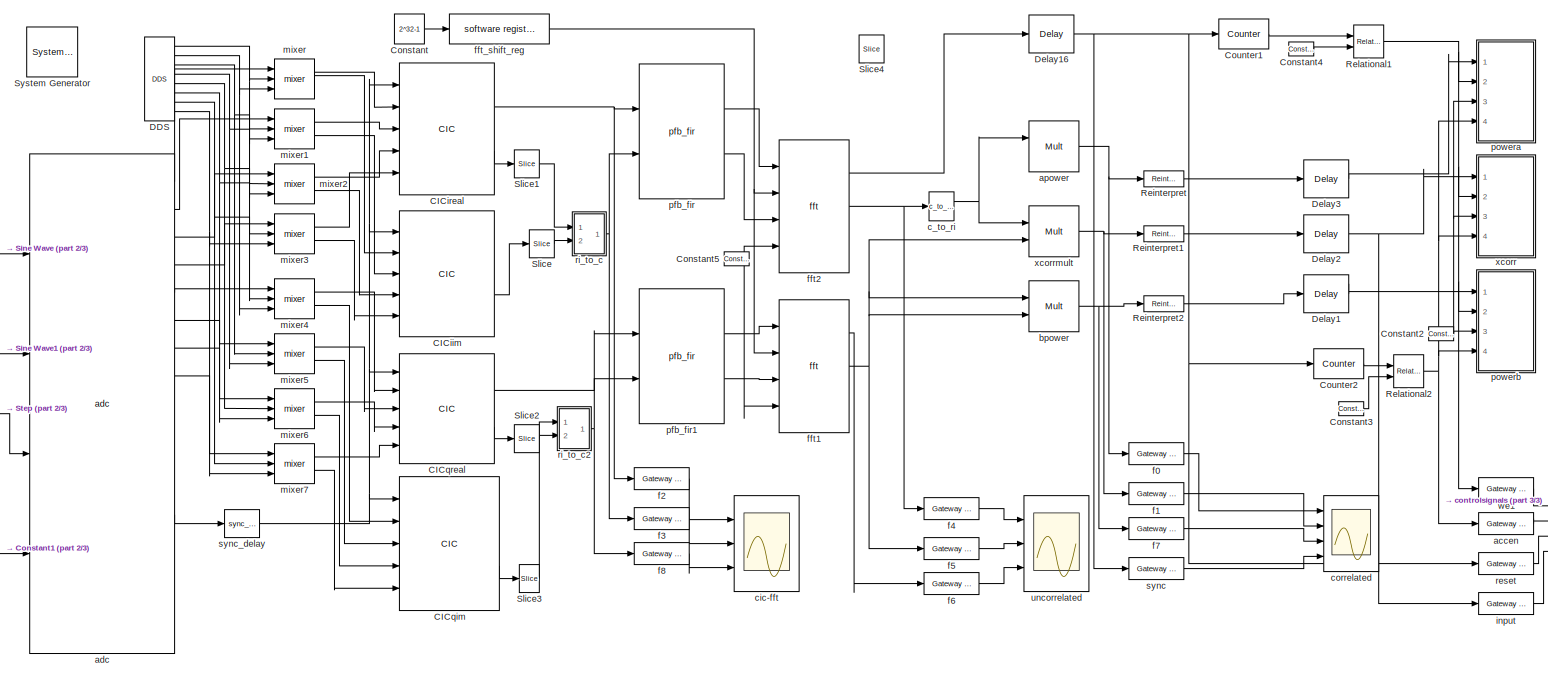
[diagram: root canvas - part 1/3, most of the canvas]
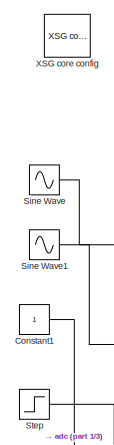
[diagram: root canvas - part 2/3, middle left region]
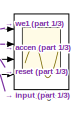
[diagram: root canvas - part 3/3, bottom right region]
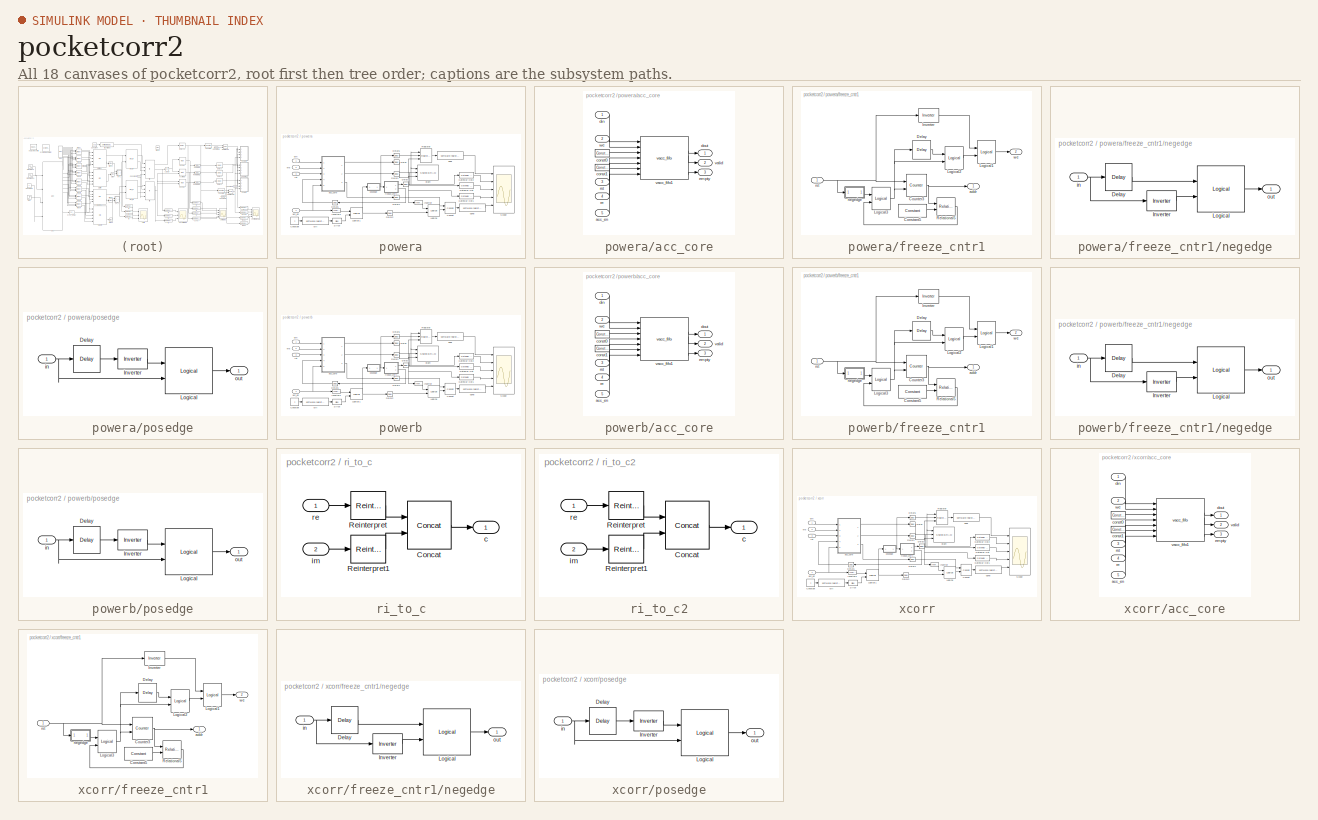
[diagram: thumbnail index - all 18 canvases of the model, root first then tree order]
MODEL pocketcorr2
KIND model
BLOCK [Reference]  System Generator  REF=xbsIndex_r3/ System Generator
  AttributesFormatString = System\\nGenerator
  Ports = []
  ShowPortLabels = on
  SourceBlock = xbsIndex_r3/ System Generator
  SourceType = Xilinx System Generator
  Tag = genX
  UserData = DataTag0
  UserDataPersistent = on
  core_generation = According to Block Masks
  dbl_ovrd = According to Block Masks
  deprecated_control = off
  directory = ./pocketcorr2/sysgen
  eval_field = 0
  incr_netlist = off
  package = ff1152
  part = xc2vp50
  run_coregen = off
  simulink_period = 1
  speed = -7
  synthesis_tool = XST
  sysclk_period = 6.6667
  testbench = off
  trim_vbits = Everywhere in SubSystem
  xilinxfamily = Virtex2P
BLOCK [Reference] CICiim  REF=cic_library/CIC  (lib defined in mdl_9e98d06c7f4b)
  D = 1
  Description = Cascaded integrator-comb filter.  Linear phase response.
  Ports = [5, 2]
  R = 1
  ShowPortLabels = on
  SourceBlock = cic_library/CIC
  SourceType = BEE2 CIC
  add_latency = 2
  comb_latency = 1
  input_binary_pt = 14
  input_bitwidth = 16
  inputs = 4
  int_latency = 1
  pipeline = off
  stages = 1
BLOCK [Reference] CICireal  REF=cic_library/CIC  (lib defined in mdl_9e98d06c7f4b)
  D = 1
  Description = Cascaded integrator-comb filter.  Linear phase response.
  Ports = [5, 2]
  R = 1
  ShowPortLabels = on
  SourceBlock = cic_library/CIC
  SourceType = BEE2 CIC
  add_latency = 2
  comb_latency = 1
  input_binary_pt = 14
  input_bitwidth = 16
  inputs = 4
  int_latency = 1
  pipeline = off
  stages = 1
BLOCK [Reference] CICqim  REF=cic_library/CIC  (lib defined in mdl_9e98d06c7f4b)
  D = 1
  Description = Cascaded integrator-comb filter.  Linear phase response.
  Ports = [5, 2]
  R = 1
  ShowPortLabels = on
  SourceBlock = cic_library/CIC
  SourceType = BEE2 CIC
  add_latency = 2
  comb_latency = 1
  input_binary_pt = 14
  input_bitwidth = 16
  inputs = 4
  int_latency = 1
  pipeline = off
  stages = 1
BLOCK [Reference] CICqreal  REF=cic_library/CIC  (lib defined in mdl_9e98d06c7f4b)
  D = 1
  Description = Cascaded integrator-comb filter.  Linear phase response.
  Ports = [5, 2]
  R = 1
  ShowPortLabels = on
  SourceBlock = cic_library/CIC
  SourceType = BEE2 CIC
  add_latency = 2
  comb_latency = 1
  input_binary_pt = 14
  input_bitwidth = 16
  inputs = 4
  int_latency = 1
  pipeline = off
  stages = 1
BLOCK [Constant] Constant
  Value = 2^32-1
BLOCK [Constant] Constant1
BLOCK [Reference] Constant2  REF=xbsIndex_r3/Constant
  Ports = [0, 1]
  SourceBlock = xbsIndex_r3/Constant
  SourceType = Xilinx Constant Block
  arith_type = Boolean
  bin_pt = 0
  carry = CIN
  const = 0
  dbl_ovrd = off
  equ = P=C
  explicit_period = on
  inp1 = P
  inp2 = PCIN>>17
  iostate = 0
  n_bits = 1
  opr = +
  opselect = C
  period = 1
BLOCK [Reference] Constant3  REF=xbsIndex_r3/Constant
  Ports = [0, 1]
  SourceBlock = xbsIndex_r3/Constant
  SourceType = Xilinx Constant Block
  arith_type = Unsigned
  bin_pt = 0
  carry = CIN
  const = 64
  dbl_ovrd = off
  equ = P=C
  explicit_period = on
  inp1 = P
  inp2 = PCIN>>17
  iostate = 0
  n_bits = 7
  opr = +
  opselect = C
  period = 1
BLOCK [Reference] Constant4  REF=xbsIndex_r3/Constant
  Ports = [0, 1]
  SourceBlock = xbsIndex_r3/Constant
  SourceType = Xilinx Constant Block
  arith_type = Unsigned
  bin_pt = 0
  carry = CIN
  const = 2^4
  dbl_ovrd = off
  equ = P=C
  explicit_period = on
  inp1 = P
  inp2 = PCIN>>17
  iostate = 0
  n_bits = 6
  opr = +
  opselect = C
  period = 1
BLOCK [Reference] Constant5  REF=xbsIndex_r3/Constant
  Ports = [0, 1]
  SourceBlock = xbsIndex_r3/Constant
  SourceType = Xilinx Constant Block
  arith_type = Unsigned
  bin_pt = 0
  carry = CIN
  const = 0
  dbl_ovrd = off
  equ = P=C
  explicit_period = on
  inp1 = P
  inp2 = PCIN>>17
  iostate = 0
  n_bits = 1
  opr = +
  opselect = C
  period = 1
BLOCK [Reference] Counter1  REF=xbsIndex_r3/Counter
  Ports = [1, 1]
  SourceBlock = xbsIndex_r3/Counter
  SourceType = Xilinx Counter Block
  arith_type = Unsigned
  bin_pt = 0
  cnt_by_val = 1
  cnt_to = Inf
  cnt_type = Free Running
  dbl_ovrd = off
  en = off
  explicit_period = off
  gen_core = off
  load_pin = off
  n_bits = 5
  operation = Up
  period = 1
  rst = on
  show_param = off
  start_count = 0
  use_rpm = on
  xl_area = [0, 0, 0, 0, 0, 0, 0]
  xl_use_area = off
BLOCK [Reference] Counter2  REF=xbsIndex_r3/Counter
  Ports = [1, 1]
  SourceBlock = xbsIndex_r3/Counter
  SourceType = Xilinx Counter Block
  arith_type = Unsigned
  bin_pt = 0
  cnt_by_val = 1
  cnt_to = Inf
  cnt_type = Free Running
  dbl_ovrd = off
  en = off
  explicit_period = off
  gen_core = off
  load_pin = off
  n_bits = 8
  operation = Up
  period = 1
  rst = on
  show_param = off
  start_count = 0
  use_rpm = on
  xl_area = [0, 0, 0, 0, 0, 0, 0]
  xl_use_area = off
BLOCK [Reference] DDS  REF=ddc_library/DDS  (lib defined in mdl_423f3fd48bb0)
  BitWidth = 8
  Ports = [0, 8]
  ShowPortLabels = on
  SourceBlock = ddc_library/DDS
  freq = 2
  freq_div = 8
  latency = 2
  num_lo = 4
BLOCK [Reference] Delay1  REF=xbsIndex_r3/Delay
  Ports = [1, 1]
  SourceBlock = xbsIndex_r3/Delay
  SourceType = Xilinx Delay Block
  accept_only_valid = off
  dbl_ovrd = off
  en = off
  explicit_period = on
  init_zero = on
  latency = 1
  period = 1
  reg_retiming = off
  show_param = off
  xl_area = [0, 0, 0, 0, 0, 0, 0]
  xl_use_area = off
BLOCK [Reference] Delay16  REF=xbsIndex_r3/Delay
  Ports = [1, 1]
  SourceBlock = xbsIndex_r3/Delay
  SourceType = Xilinx Delay Block
  accept_only_valid = off
  dbl_ovrd = off
  en = off
  explicit_period = on
  init_zero = on
  latency = 5
  period = 1
  reg_retiming = off
  show_param = off
  xl_area = [0, 0, 0, 0, 0, 0, 0]
  xl_use_area = off
BLOCK [Reference] Delay2  REF=xbsIndex_r3/Delay
  Ports = [1, 1]
  SourceBlock = xbsIndex_r3/Delay
  SourceType = Xilinx Delay Block
  accept_only_valid = off
  dbl_ovrd = off
  en = off
  explicit_period = on
  init_zero = on
  latency = 1
  period = 1
  reg_retiming = off
  show_param = off
  xl_area = [0, 0, 0, 0, 0, 0, 0]
  xl_use_area = off
BLOCK [Reference] Delay3  REF=xbsIndex_r3/Delay
  Ports = [1, 1]
  SourceBlock = xbsIndex_r3/Delay
  SourceType = Xilinx Delay Block
  accept_only_valid = off
  dbl_ovrd = off
  en = off
  explicit_period = on
  init_zero = on
  latency = 1
  period = 1
  reg_retiming = off
  show_param = off
  xl_area = [0, 0, 0, 0, 0, 0, 0]
  xl_use_area = off
BLOCK [Reference] Reinterpret  REF=xbsIndex_r3/Reinterpret
  Ports = [1, 1]
  SourceBlock = xbsIndex_r3/Reinterpret
  SourceType = Xilinx Type Reinterpreting Block
  arith_type = Unsigned
  bin_pt = 20
  force_arith_type = on
  force_bin_pt = on
  force_valid = on
BLOCK [Reference] Reinterpret1  REF=xbsIndex_r3/Reinterpret
  Ports = [1, 1]
  SourceBlock = xbsIndex_r3/Reinterpret
  SourceType = Xilinx Type Reinterpreting Block
  arith_type = Unsigned
  bin_pt = 20
  force_arith_type = on
  force_bin_pt = on
  force_valid = on
BLOCK [Reference] Reinterpret2  REF=xbsIndex_r3/Reinterpret
  Ports = [1, 1]
  SourceBlock = xbsIndex_r3/Reinterpret
  SourceType = Xilinx Type Reinterpreting Block
  arith_type = Unsigned
  bin_pt = 20
  force_arith_type = on
  force_bin_pt = on
  force_valid = on
BLOCK [Reference] Relational1  REF=xbsIndex_r3/Relational
  Ports = [2, 1]
  SourceBlock = xbsIndex_r3/Relational
  SourceType = Xilinx Relational Block
  dbl_ovrd = off
  en = off
  explicit_period = on
  latency = 1
  mode = a<b
  period = 1
  show_param = off
  xl_area = [0, 0, 0, 0, 0, 0, 0]
  xl_use_area = off
BLOCK [Reference] Relational2  REF=xbsIndex_r3/Relational
  Ports = [2, 1]
  SourceBlock = xbsIndex_r3/Relational
  SourceType = Xilinx Relational Block
  dbl_ovrd = off
  en = off
  explicit_period = on
  latency = 1
  mode = a<b
  period = 1
  show_param = off
  xl_area = [0, 0, 0, 0, 0, 0, 0]
  xl_use_area = off
BLOCK [Sin] Sine Wave
  Ports = [0, 1]
  SampleTime = 0
  SineType = Time based
BLOCK [Sin] Sine Wave1
  Frequency = 2
  Ports = [0, 1]
  SampleTime = 0
  SineType = Time based
BLOCK [Reference] Slice  REF=xbsIndex_r3/Slice
  Ports = [1, 1]
  SourceBlock = xbsIndex_r3/Slice
  SourceType = Xilinx Slice Block
  base0 = LSB of Input
  base1 = MSB of Input
  bit0 = 0
  bit1 = 0
  boolean_output = off
  dbl_ovrd = off
  explicit_period = off
  mode = Upper Bit Location + Width
  nbits = 9
  period = 1
BLOCK [Reference] Slice1  REF=xbsIndex_r3/Slice
  Ports = [1, 1]
  SourceBlock = xbsIndex_r3/Slice
  SourceType = Xilinx Slice Block
  base0 = LSB of Input
  base1 = MSB of Input
  bit0 = 0
  bit1 = 0
  boolean_output = off
  dbl_ovrd = off
  explicit_period = off
  mode = Upper Bit Location + Width
  nbits = 9
  period = 1
BLOCK [Reference] Slice2  REF=xbsIndex_r3/Slice
  Ports = [1, 1]
  SourceBlock = xbsIndex_r3/Slice
  SourceType = Xilinx Slice Block
  base0 = LSB of Input
  base1 = MSB of Input
  bit0 = 0
  bit1 = 0
  boolean_output = off
  dbl_ovrd = off
  explicit_period = off
  mode = Upper Bit Location + Width
  nbits = 9
  period = 1
BLOCK [Reference] Slice3  REF=xbsIndex_r3/Slice
  Ports = [1, 1]
  SourceBlock = xbsIndex_r3/Slice
  SourceType = Xilinx Slice Block
  base0 = LSB of Input
  base1 = MSB of Input
  bit0 = 0
  bit1 = 0
  boolean_output = off
  dbl_ovrd = off
  explicit_period = off
  mode = Upper Bit Location + Width
  nbits = 9
  period = 1
BLOCK [Reference] Slice4  REF=xbsIndex_r3/Slice
  Ports = [1, 1]
  SourceBlock = xbsIndex_r3/Slice
  SourceType = Xilinx Slice Block
  base0 = LSB of Input
  base1 = MSB of Input
  bit0 = 0
  bit1 = 0
  boolean_output = off
  dbl_ovrd = off
  explicit_period = off
  mode = Upper Bit Location + Width
  nbits = 9
  period = 1
BLOCK [Step] Step
  After = 0
  Before = 1
  SampleTime = 0
  Time = 10
BLOCK [Reference] XSG core config  REF=xps_library/XSG core config  (lib defined in mdl_00b5cec29cd0, mdl_02ab6ecaa3d1, +5 more)
  Ports = []
  ShowPortLabels = on
  SourceBlock = xps_library/XSG core config
  Tag = xps:xsg
  clk_rate = 150
  clk_src = adc0_clk
  hw_sys = iBOB
  mpc_type = powerpc405
  sample_period = 1
  synthesis_tool = XST
BLOCK [Reference] accen  REF=xbsIndex_r3/Gateway Out
  LOCs = {}
  Ports = [1, 1]
  SourceBlock = xbsIndex_r3/Gateway Out
  SourceType = Xilinx Gateway Out
  arith_type = Boolean
  bin_pt = 6
  hdl_port = on
  locs_specified = off
  nbits = 8
  needs_fixed_name = off
  output_type = Double
  overflow = Wrap
  quantization = Truncate
  show_param = off
  timing_constraint = None
  xl_area = [0, 0, 0, 0, 0, 0, 0]
  xl_use_area = off
BLOCK [Reference] adc  REF=xps_library/adc  (lib defined in mdl_00b5cec29cd0, mdl_02ab6ecaa3d1, +5 more)
  Ports = [4, 17]
  ShowPortLabels = on
  SourceBlock = xps_library/adc
  Tag = xps:adc
  adc_brd = iBOB:adc0
  adc_clk_rate = 600
  adc_interleave = off
  sample_period = 1
BLOCK [Reference] apower  REF=xbsIndex_r3/Mult
  Ports = [2, 1]
  SourceBlock = xbsIndex_r3/Mult
  SourceType = Xilinx Multiplier
  arith_type = Signed  (2's comp)
  bin_pt = 2
  dbl_ovrd = off
  en = off
  explicit_period = on
  gen_core = off
  latency = 5
  mult_type = Parallel
  n_bits = 8
  overflow = Wrap
  oversample = 2
  period = 1
  pipeline = on
  placement_style = Rectangular Shape
  precision = Full
  quantization = Truncate
  show_param = off
  use_embedded = off
  use_rpm = on
  xl_area = [0, 0, 0, 0, 0, 0, 0]
  xl_use_area = off
BLOCK [Reference] bpower  REF=xbsIndex_r3/Mult
  Ports = [2, 1]
  SourceBlock = xbsIndex_r3/Mult
  SourceType = Xilinx Multiplier
  arith_type = Signed  (2's comp)
  bin_pt = 2
  dbl_ovrd = off
  en = off
  explicit_period = on
  gen_core = off
  latency = 5
  mult_type = Parallel
  n_bits = 8
  overflow = Wrap
  oversample = 2
  period = 1
  pipeline = on
  placement_style = Rectangular Shape
  precision = Full
  quantization = Truncate
  show_param = off
  use_embedded = off
  use_rpm = on
  xl_area = [0, 0, 0, 0, 0, 0, 0]
  xl_use_area = off
BLOCK [Reference] c_to_ri  REF=fft_library/c_to_ri  (lib defined in mdl_1e4ee9a0e578, mdl_700654ea79ba)
  BitWidth = 18
  Ports = [1, 2]
  ShowPortLabels = on
  SourceBlock = fft_library/c_to_ri
BLOCK [Scope] cic-fft
  DataFormat = StructureWithTime
  NumInputPorts = 3
  Ports = [3]
  SaveName = ScopeData3
  YMax = 5~5~5
  YMin = -5~-5~-5
  ZoomMode = xonly
BLOCK [Scope] controlsignals
  DataFormat = StructureWithTime
  NumInputPorts = 4
  Ports = [4]
  SaveName = ScopeData4
  YMax = 5~5~5~5
  YMin = -5~-5~-5~-5
  ZoomMode = xonly
BLOCK [Scope] correlated
  DataFormat = StructureWithTime
  NumInputPorts = 4
  Ports = [4]
  SaveName = ScopeData1
  YMax = 5~5~5~5
  YMin = -5~-5~-5~-5
  ZoomMode = xonly
BLOCK [Reference] f0  REF=xbsIndex_r3/Gateway Out
  LOCs = {}
  Ports = [1, 1]
  SourceBlock = xbsIndex_r3/Gateway Out
  SourceType = Xilinx Gateway Out
  arith_type = Boolean
  bin_pt = 6
  hdl_port = on
  locs_specified = off
  nbits = 8
  needs_fixed_name = off
  output_type = Double
  overflow = Wrap
  quantization = Truncate
  show_param = off
  timing_constraint = None
  xl_area = [0, 0, 0, 0, 0, 0, 0]
  xl_use_area = off
BLOCK [Reference] f1  REF=xbsIndex_r3/Gateway Out
  LOCs = {}
  Ports = [1, 1]
  SourceBlock = xbsIndex_r3/Gateway Out
  SourceType = Xilinx Gateway Out
  arith_type = Boolean
  bin_pt = 6
  hdl_port = on
  locs_specified = off
  nbits = 8
  needs_fixed_name = off
  output_type = Double
  overflow = Wrap
  quantization = Truncate
  show_param = off
  timing_constraint = None
  xl_area = [0, 0, 0, 0, 0, 0, 0]
  xl_use_area = off
BLOCK [Reference] f2  REF=xbsIndex_r3/Gateway Out
  LOCs = {}
  Ports = [1, 1]
  SourceBlock = xbsIndex_r3/Gateway Out
  SourceType = Xilinx Gateway Out
  arith_type = Boolean
  bin_pt = 6
  hdl_port = on
  locs_specified = off
  nbits = 8
  needs_fixed_name = off
  output_type = Automatic
  overflow = Wrap
  quantization = Truncate
  show_param = off
  timing_constraint = None
  xl_area = [0, 0, 0, 0, 0, 0, 0]
  xl_use_area = off
BLOCK [Reference] f3  REF=xbsIndex_r3/Gateway Out
  LOCs = {}
  Ports = [1, 1]
  SourceBlock = xbsIndex_r3/Gateway Out
  SourceType = Xilinx Gateway Out
  arith_type = Boolean
  bin_pt = 6
  hdl_port = on
  locs_specified = off
  nbits = 8
  needs_fixed_name = off
  output_type = Double
  overflow = Wrap
  quantization = Truncate
  show_param = off
  timing_constraint = None
  xl_area = [0, 0, 0, 0, 0, 0, 0]
  xl_use_area = off
BLOCK [Reference] f4  REF=xbsIndex_r3/Gateway Out
  LOCs = {}
  Ports = [1, 1]
  SourceBlock = xbsIndex_r3/Gateway Out
  SourceType = Xilinx Gateway Out
  arith_type = Boolean
  bin_pt = 6
  hdl_port = on
  locs_specified = off
  nbits = 8
  needs_fixed_name = off
  output_type = Double
  overflow = Wrap
  quantization = Truncate
  show_param = off
  timing_constraint = None
  xl_area = [0, 0, 0, 0, 0, 0, 0]
  xl_use_area = off
BLOCK [Reference] f5  REF=xbsIndex_r3/Gateway Out
  LOCs = {}
  Ports = [1, 1]
  SourceBlock = xbsIndex_r3/Gateway Out
  SourceType = Xilinx Gateway Out
  arith_type = Boolean
  bin_pt = 6
  hdl_port = on
  locs_specified = off
  nbits = 8
  needs_fixed_name = off
  output_type = Double
  overflow = Wrap
  quantization = Truncate
  show_param = off
  timing_constraint = None
  xl_area = [0, 0, 0, 0, 0, 0, 0]
  xl_use_area = off
BLOCK [Reference] f6  REF=xbsIndex_r3/Gateway Out
  LOCs = {}
  Ports = [1, 1]
  SourceBlock = xbsIndex_r3/Gateway Out
  SourceType = Xilinx Gateway Out
  arith_type = Boolean
  bin_pt = 6
  hdl_port = on
  locs_specified = off
  nbits = 8
  needs_fixed_name = off
  output_type = Double
  overflow = Wrap
  quantization = Truncate
  show_param = off
  timing_constraint = None
  xl_area = [0, 0, 0, 0, 0, 0, 0]
  xl_use_area = off
BLOCK [Reference] f7  REF=xbsIndex_r3/Gateway Out
  LOCs = {}
  Ports = [1, 1]
  SourceBlock = xbsIndex_r3/Gateway Out
  SourceType = Xilinx Gateway Out
  arith_type = Boolean
  bin_pt = 6
  hdl_port = on
  locs_specified = off
  nbits = 8
  needs_fixed_name = off
  output_type = Double
  overflow = Wrap
  quantization = Truncate
  show_param = off
  timing_constraint = None
  xl_area = [0, 0, 0, 0, 0, 0, 0]
  xl_use_area = off
BLOCK [Reference] f8  REF=xbsIndex_r3/Gateway Out
  LOCs = {}
  Ports = [1, 1]
  SourceBlock = xbsIndex_r3/Gateway Out
  SourceType = Xilinx Gateway Out
  arith_type = Boolean
  bin_pt = 6
  hdl_port = on
  locs_specified = off
  nbits = 8
  needs_fixed_name = off
  output_type = Double
  overflow = Wrap
  quantization = Truncate
  show_param = off
  timing_constraint = None
  xl_area = [0, 0, 0, 0, 0, 0, 0]
  xl_use_area = off
BLOCK [Reference] fft1  REF=fft_library/fft  (lib defined in mdl_1e4ee9a0e578, mdl_700654ea79ba)
  BitWidth = 72
  FFTSize = 5
  Ports = [4, 3]
  ShowPortLabels = on
  SourceBlock = fft_library/fft
  add_latency = 2
  bram_latency = 2
  mult_latency = 3
  n_inputs = 0
  overflow = Wrap
  quantization = Truncate
BLOCK [Reference] fft2  REF=fft_library/fft  (lib defined in mdl_1e4ee9a0e578, mdl_700654ea79ba)
  BitWidth = 72
  FFTSize = 5
  Ports = [4, 3]
  ShowPortLabels = on
  SourceBlock = fft_library/fft
  add_latency = 2
  bram_latency = 2
  mult_latency = 3
  n_inputs = 0
  overflow = Wrap
  quantization = Truncate
BLOCK [Reference] fft_shift_reg  REF=xps_library/software register  (lib defined in mdl_00b5cec29cd0, mdl_02ab6ecaa3d1, +5 more)
  Ports = [1, 1]
  ShowPortLabels = on
  SourceBlock = xps_library/software register
  Tag = xps:sw_reg
  arith_type = Unsigned
  bin_pt = 0
  bitwidth = 32
  gw_name = pocketcorr2_fft_shift_reg_user_data_out
  io_dir = From Processor
  sample_period = 1
BLOCK [Reference] input  REF=xbsIndex_r3/Gateway Out
  LOCs = {}
  Ports = [1, 1]
  SourceBlock = xbsIndex_r3/Gateway Out
  SourceType = Xilinx Gateway Out
  arith_type = Boolean
  bin_pt = 6
  hdl_port = on
  locs_specified = off
  nbits = 8
  needs_fixed_name = off
  output_type = Double
  overflow = Wrap
  quantization = Truncate
  show_param = off
  timing_constraint = None
  xl_area = [0, 0, 0, 0, 0, 0, 0]
  xl_use_area = off
BLOCK [Reference] mixer  REF=ddc_library/mixer  (lib defined in mdl_423f3fd48bb0)
  BitWidth = 18
  Ports = [3, 2]
  ShowPortLabels = on
  SourceBlock = ddc_library/mixer
  latency = 2
BLOCK [Reference] mixer1  REF=ddc_library/mixer  (lib defined in mdl_423f3fd48bb0)
  BitWidth = 18
  Ports = [3, 2]
  ShowPortLabels = on
  SourceBlock = ddc_library/mixer
  latency = 2
BLOCK [Reference] mixer2  REF=ddc_library/mixer  (lib defined in mdl_423f3fd48bb0)
  BitWidth = 18
  Ports = [3, 2]
  ShowPortLabels = on
  SourceBlock = ddc_library/mixer
  latency = 2
BLOCK [Reference] mixer3  REF=ddc_library/mixer  (lib defined in mdl_423f3fd48bb0)
  BitWidth = 18
  Ports = [3, 2]
  ShowPortLabels = on
  SourceBlock = ddc_library/mixer
  latency = 2
BLOCK [Reference] mixer4  REF=ddc_library/mixer  (lib defined in mdl_423f3fd48bb0)
  BitWidth = 18
  Ports = [3, 2]
  ShowPortLabels = on
  SourceBlock = ddc_library/mixer
  latency = 2
BLOCK [Reference] mixer5  REF=ddc_library/mixer  (lib defined in mdl_423f3fd48bb0)
  BitWidth = 18
  Ports = [3, 2]
  ShowPortLabels = on
  SourceBlock = ddc_library/mixer
  latency = 2
BLOCK [Reference] mixer6  REF=ddc_library/mixer  (lib defined in mdl_423f3fd48bb0)
  BitWidth = 18
  Ports = [3, 2]
  ShowPortLabels = on
  SourceBlock = ddc_library/mixer
  latency = 2
BLOCK [Reference] mixer7  REF=ddc_library/mixer  (lib defined in mdl_423f3fd48bb0)
  BitWidth = 18
  Ports = [3, 2]
  ShowPortLabels = on
  SourceBlock = ddc_library/mixer
  latency = 2
BLOCK [Reference] pfb_fir  REF=pfb_library/pfb_fir  (lib defined in mdl_ff9de43ed79a)
  BitWidthIn = 18
  BitWidthOut = 36
  CoeffBitWidth = 8
  CoeffDistMem = off
  MakeBiplex = off
  PFBSize = 5
  Ports = [2, 2]
  ShowPortLabels = on
  SourceBlock = pfb_library/pfb_fir
  TotalTaps = 2
  WindowType = hamming
  add_latency = 2
  bram_latency = 2
  fwidth = 1
  mult_latency = 3
  n_inputs = 0
  quantization = Round  (unbiased: +/- Inf)
BLOCK [Reference] pfb_fir1  REF=pfb_library/pfb_fir  (lib defined in mdl_ff9de43ed79a)
  BitWidthIn = 18
  BitWidthOut = 36
  CoeffBitWidth = 8
  CoeffDistMem = off
  MakeBiplex = off
  PFBSize = 5
  Ports = [2, 2]
  ShowPortLabels = on
  SourceBlock = pfb_library/pfb_fir
  TotalTaps = 2
  WindowType = hamming
  add_latency = 2
  bram_latency = 2
  fwidth = 1
  mult_latency = 3
  n_inputs = 0
  quantization = Round  (unbiased: +/- Inf)
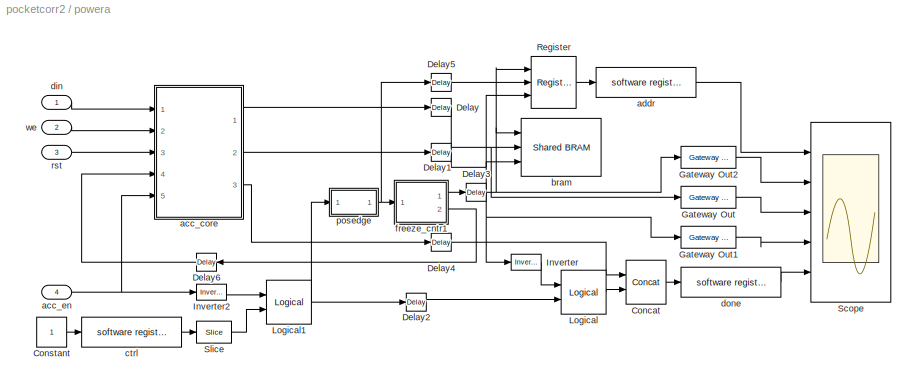
BLOCK [SubSystem] powera
  AncestorBlock = correlator_library/vacc
  MaskCallbackString = |||||||
  MaskEnableString = on,on,on,on,on,on,on,on
  MaskIconFrame = on
  MaskIconOpaque = on
  MaskIconRotate = none
  MaskIconUnits = autoscale
  MaskInitialization = cursys = gcb;\ndisp(cursys);\n\ncore = [cursys,'/acc_core'];\nif ~strcmp(get_param(core, 'arith_type'), arith_type),\n    set_param(core, 'arith_type', arith_type);\nend
  MaskPromptString = Vector Length|Output Sample Bit Width|Output Binary Point|Add Latency|Arithmetic Type|Input Bit Width|Input Binary Point|Number of Parallel Streams
  MaskSelfModifiable = on
  MaskStyleString = edit,edit,edit,edit,popup(Unsigned|Signed  (2's comp)),edit,edit,edit
  MaskTabNameString = ,,,,,,,
  MaskToolTipString = on,on,on,on,on,on,on,on
  MaskTunableValueString = on,on,on,on,on,on,on,on
  MaskValueString = 32/2-1|32|0|2|Unsigned|72|20|1
  MaskVarAliasString = ,,,,,,,
  MaskVariables = vlen=@1;n_bits=@2;bin_pt=@3;add_latency=@4;arith_type=&5;BitWidthIn=@6;BinPtIn=@7;streams=@8;
  MaskVisibilityString = on,on,on,on,on,on,on,on
  MinAlgLoopOccurrences = off
  Ports = [4]
  RTWSystemCode = Auto
  TreatAsAtomicUnit = off
BLOCK [Reference] powera/Concat  REF=xbsIndex_r3/Concat
  Ports = [2, 1]
  SourceBlock = xbsIndex_r3/Concat
  SourceType = Xilinx Bus Concatenator
  dbl_ovrd = off
  explicit_period = off
  num_inputs = 2
  period = 1
BLOCK [Constant] powera/Constant
BLOCK [Reference] powera/Delay  REF=xbsIndex_r3/Delay
  Ports = [1, 1]
  SourceBlock = xbsIndex_r3/Delay
  SourceType = Xilinx Delay Block
  accept_only_valid = off
  dbl_ovrd = off
  en = off
  explicit_period = off
  init_zero = on
  latency = 1
  period = 1
  reg_retiming = off
  show_param = off
  xl_area = [0, 0, 0, 0, 0, 0, 0]
  xl_use_area = off
BLOCK [Reference] powera/Delay1  REF=xbsIndex_r3/Delay
  Ports = [1, 1]
  SourceBlock = xbsIndex_r3/Delay
  SourceType = Xilinx Delay Block
  accept_only_valid = off
  dbl_ovrd = off
  en = off
  explicit_period = off
  init_zero = on
  latency = 1
  period = 1
  reg_retiming = off
  show_param = off
  xl_area = [0, 0, 0, 0, 0, 0, 0]
  xl_use_area = off
BLOCK [Reference] powera/Delay2  REF=xbsIndex_r3/Delay
  Ports = [1, 1]
  SourceBlock = xbsIndex_r3/Delay
  SourceType = Xilinx Delay Block
  accept_only_valid = off
  dbl_ovrd = off
  en = off
  explicit_period = off
  init_zero = on
  latency = 6
  period = 1
  reg_retiming = off
  show_param = off
  xl_area = [0, 0, 0, 0, 0, 0, 0]
  xl_use_area = off
BLOCK [Reference] powera/Delay3  REF=xbsIndex_r3/Delay
  Ports = [1, 1]
  SourceBlock = xbsIndex_r3/Delay
  SourceType = Xilinx Delay Block
  accept_only_valid = off
  dbl_ovrd = off
  en = off
  explicit_period = off
  init_zero = on
  latency = 4
  period = 1
  reg_retiming = off
  show_param = off
  xl_area = [0, 0, 0, 0, 0, 0, 0]
  xl_use_area = off
BLOCK [Reference] powera/Delay4  REF=xbsIndex_r3/Delay
  Ports = [1, 1]
  SourceBlock = xbsIndex_r3/Delay
  SourceType = Xilinx Delay Block
  accept_only_valid = off
  dbl_ovrd = off
  en = off
  explicit_period = on
  init_zero = on
  latency = 2
  period = 1
  reg_retiming = off
  show_param = off
  xl_area = [0, 0, 0, 0, 0, 0, 0]
  xl_use_area = off
BLOCK [Reference] powera/Delay5  REF=xbsIndex_r3/Delay
  Ports = [1, 1]
  SourceBlock = xbsIndex_r3/Delay
  SourceType = Xilinx Delay Block
  accept_only_valid = off
  dbl_ovrd = off
  en = off
  explicit_period = off
  init_zero = on
  latency = 3
  period = 1
  reg_retiming = off
  show_param = off
  xl_area = [0, 0, 0, 0, 0, 0, 0]
  xl_use_area = off
BLOCK [Reference] powera/Delay6  REF=xbsIndex_r3/Delay
  Ports = [1, 1]
  SourceBlock = xbsIndex_r3/Delay
  SourceType = Xilinx Delay Block
  accept_only_valid = off
  dbl_ovrd = off
  en = off
  explicit_period = off
  init_zero = on
  latency = 3
  period = 1
  reg_retiming = off
  show_param = off
  xl_area = [0, 0, 0, 0, 0, 0, 0]
  xl_use_area = off
BLOCK [Reference] powera/Gateway Out  REF=xbsIndex_r3/Gateway Out
  LOCs = {}
  Ports = [1, 1]
  SourceBlock = xbsIndex_r3/Gateway Out
  SourceType = Xilinx Gateway Out
  arith_type = Boolean
  bin_pt = 6
  hdl_port = off
  locs_specified = off
  nbits = 8
  needs_fixed_name = off
  output_type = Double
  overflow = Wrap
  quantization = Truncate
  show_param = off
  timing_constraint = None
  xl_area = [0, 0, 0, 0, 0, 0, 0]
  xl_use_area = off
BLOCK [Reference] powera/Gateway Out1  REF=xbsIndex_r3/Gateway Out
  LOCs = {}
  Ports = [1, 1]
  SourceBlock = xbsIndex_r3/Gateway Out
  SourceType = Xilinx Gateway Out
  arith_type = Boolean
  bin_pt = 6
  hdl_port = off
  locs_specified = off
  nbits = 8
  needs_fixed_name = off
  output_type = Double
  overflow = Wrap
  quantization = Truncate
  show_param = off
  timing_constraint = None
  xl_area = [0, 0, 0, 0, 0, 0, 0]
  xl_use_area = off
BLOCK [Reference] powera/Gateway Out2  REF=xbsIndex_r3/Gateway Out
  LOCs = {}
  Ports = [1, 1]
  SourceBlock = xbsIndex_r3/Gateway Out
  SourceType = Xilinx Gateway Out
  arith_type = Boolean
  bin_pt = 6
  hdl_port = off
  locs_specified = off
  nbits = 8
  needs_fixed_name = off
  output_type = Double
  overflow = Wrap
  quantization = Truncate
  show_param = off
  timing_constraint = None
  xl_area = [0, 0, 0, 0, 0, 0, 0]
  xl_use_area = off
BLOCK [Reference] powera/Inverter  REF=xbsIndex_r3/Inverter
  Ports = [1, 1]
  SourceBlock = xbsIndex_r3/Inverter
  SourceType = Xilinx Inverter
  dbl_ovrd = off
  en = off
  explicit_period = off
  latency = 0
  period = 1
  show_param = off
  xl_area = [0, 0, 0, 0, 0, 0, 0]
  xl_use_area = off
BLOCK [Reference] powera/Inverter2  REF=xbsIndex_r3/Inverter
  Ports = [1, 1]
  SourceBlock = xbsIndex_r3/Inverter
  SourceType = Xilinx Inverter
  dbl_ovrd = off
  en = off
  explicit_period = off
  latency = 0
  period = 1
  show_param = off
  xl_area = [0, 0, 0, 0, 0, 0, 0]
  xl_use_area = off
BLOCK [Reference] powera/Logical  REF=xbsIndex_r3/Logical
  Ports = [2, 1]
  SourceBlock = xbsIndex_r3/Logical
  SourceType = Xilinx Logical Block
  align_bp = on
  arith_type = Unsigned
  bin_pt = 2
  dbl_ovrd = off
  en = off
  explicit_period = off
  inputs = 2
  latency = 0
  logical_function = AND
  n_bits = 8
  period = 1
  precision = Full
  show_param = off
  xl_area = [0, 0, 0, 0, 0, 0, 0]
  xl_use_area = off
BLOCK [Reference] powera/Logical1  REF=xbsIndex_r3/Logical
  Ports = [2, 1]
  SourceBlock = xbsIndex_r3/Logical
  SourceType = Xilinx Logical Block
  align_bp = on
  arith_type = Unsigned
  bin_pt = 2
  dbl_ovrd = off
  en = off
  explicit_period = off
  inputs = 2
  latency = 1
  logical_function = AND
  n_bits = 8
  period = 1
  precision = Full
  show_param = off
  xl_area = [0, 0, 0, 0, 0, 0, 0]
  xl_use_area = off
BLOCK [Reference] powera/Register  REF=xbsIndex_r3/Register
  Ports = [3, 1]
  SourceBlock = xbsIndex_r3/Register
  SourceType = Xilinx Register Block
  dbl_ovrd = off
  en = on
  explicit_period = off
  init = 0
  out_en = off
  period = 1
  reg_only_valid = off
  rst = on
  show_param = off
  xl_area = [0, 0, 0, 0, 0, 0, 0]
  xl_use_area = off
BLOCK [Scope] powera/Scope
  DataFormat = StructureWithTime
  LimitDataPoints = off
  NumInputPorts = 5
  Ports = [5]
  YMax = 50~200~4~1~3
  YMin = 0~0~0~0~0
  ZoomMode = xonly
BLOCK [Reference] powera/Slice  REF=xbsIndex_r3/Slice
  Ports = [1, 1]
  SourceBlock = xbsIndex_r3/Slice
  SourceType = Xilinx Slice Block
  base0 = LSB of Input
  base1 = MSB of Input
  bit0 = 0
  bit1 = 0
  boolean_output = on
  dbl_ovrd = off
  explicit_period = off
  mode = Lower Bit Location + Width
  nbits = 1
  period = 1
BLOCK [SubSystem] powera/acc_core
  MaskCallbackString = |||||||
  MaskEnableString = on,on,on,on,on,on,on,on
  MaskIconFrame = on
  MaskIconOpaque = on
  MaskIconRotate = none
  MaskIconUnits = autoscale
  MaskInitialization = acc_core_mask;
  MaskPromptString = Vector Length|Output Sample Bit Width|Output Binary Point|Add Latency|Arithmetic Type|Input Bit Width|Input Binary Point|Number of Parallel Streams
  MaskSelfModifiable = on
  MaskStyleString = edit,edit,edit,edit,popup(Unsigned|Signed  (2's comp)),edit,edit,edit
  MaskTabNameString = ,,,,,,,
  MaskToolTipString = on,on,on,on,on,on,on,on
  MaskTunableValueString = on,on,on,on,on,on,on,on
  MaskValueString = vlen|n_bits|bin_pt|add_latency|Unsigned|BitWidthIn|BinPtIn|streams
  MaskVarAliasString = ,,,,,,,
  MaskVariables = vlen=@1;n_bits=@2;bin_pt=@3;add_latency=@4;arith_type=&5;BitWidthIn=@6;BinPtIn=@7;streams=@8;
  MaskVisibilityString = on,on,on,on,on,on,on,on
  MinAlgLoopOccurrences = off
  Ports = [5, 3]
  RTWSystemCode = Auto
  TreatAsAtomicUnit = off
BLOCK [Inport] powera/acc_core/acc_en
  IconDisplay = Port number
  LatchInput = off
  Port = 5
BLOCK [Reference] powera/acc_core/const0  REF=xbsIndex_r3/Constant
  Ports = [0, 1]
  SourceBlock = xbsIndex_r3/Constant
  SourceType = Xilinx Constant Block
  arith_type = Unsigned
  bin_pt = bin_pt
  carry = CIN
  const = 0
  dbl_ovrd = off
  equ = P=C
  explicit_period = on
  inp1 = P
  inp2 = PCIN>>17
  iostate = 0
  n_bits = n_bits
  opr = +
  opselect = C
  period = 1
BLOCK [Reference] powera/acc_core/const1  REF=xbsIndex_r3/Constant
  Ports = [0, 1]
  SourceBlock = xbsIndex_r3/Constant
  SourceType = Xilinx Constant Block
  arith_type = Boolean
  bin_pt = 0
  carry = CIN
  const = 0
  dbl_ovrd = off
  equ = P=C
  explicit_period = on
  inp1 = P
  inp2 = PCIN>>17
  iostate = 0
  n_bits = 1
  opr = +
  opselect = C
  period = 1
BLOCK [Inport] powera/acc_core/din
  IconDisplay = Port number
  LatchInput = off
  Port = 1
BLOCK [Outport] powera/acc_core/dout
  BusOutputAsStruct = off
  IconDisplay = Port number
BLOCK [Outport] powera/acc_core/empty
  BusOutputAsStruct = off
  IconDisplay = Port number
  Port = 3
BLOCK [Inport] powera/acc_core/re
  IconDisplay = Port number
  LatchInput = off
  Port = 4
BLOCK [Inport] powera/acc_core/rst
  IconDisplay = Port number
  LatchInput = off
  Port = 3
BLOCK [Reference] powera/acc_core/vacc_fifo1  REF=correlator_library/vacc_fifo  (lib defined in mdl_61a1cd724cd8)
  BinPtIn = BinPtIn
  BitWidthIn = BitWidthIn
  Ports = [7, 8]
  ShowPortLabels = on
  SourceBlock = correlator_library/vacc_fifo
  SourceType = vacc_fifo
  add_latency = add_latency
  arith_type = Unsigned
  bin_pt = bin_pt
  n_bits = n_bits
  stream = 1
  streams = streams
  vlen = vlen
BLOCK [Outport] powera/acc_core/valid
  BusOutputAsStruct = off
  IconDisplay = Port number
  Port = 2
BLOCK [Inport] powera/acc_core/we
  IconDisplay = Port number
  LatchInput = off
  Port = 2
BLOCK [Inport] powera/acc_en
  IconDisplay = Port number
  LatchInput = off
  Port = 4
BLOCK [Reference] powera/addr  REF=xps_library/software register  (lib defined in mdl_00b5cec29cd0, mdl_02ab6ecaa3d1, +5 more)
  Ports = [1, 1]
  ShowPortLabels = on
  SourceBlock = xps_library/software register
  Tag = xps:sw_reg
  arith_type = Unsigned
  bin_pt = 0
  bitwidth = 32
  gw_name = pocketcorr2_powera_addr_user_data_in
  io_dir = To Processor
  sample_period = 1
BLOCK [Reference] powera/bram  REF=xps_library/Shared BRAM  (lib defined in mdl_00b5cec29cd0, mdl_02ab6ecaa3d1, +5 more)
  Ports = [3, 1]
  ShowPortLabels = on
  SourceBlock = xps_library/Shared BRAM
  Tag = xps:bram
  addr_width = 11
  arith_type = Signed  (2's comp)
  data_bin_pt = bin_pt
  data_width = 32
  init_vals = 0
  sample_rate = 1
BLOCK [Reference] powera/ctrl  REF=xps_library/software register  (lib defined in mdl_00b5cec29cd0, mdl_02ab6ecaa3d1, +5 more)
  Ports = [1, 1]
  ShowPortLabels = on
  SourceBlock = xps_library/software register
  Tag = xps:sw_reg
  arith_type = Unsigned
  bin_pt = 0
  bitwidth = 32
  gw_name = pocketcorr2_powera_ctrl_user_data_out
  io_dir = From Processor
  sample_period = 1
BLOCK [Inport] powera/din
  IconDisplay = Port number
  LatchInput = off
  Port = 1
BLOCK [Reference] powera/done  REF=xps_library/software register  (lib defined in mdl_00b5cec29cd0, mdl_02ab6ecaa3d1, +5 more)
  Ports = [1, 1]
  ShowPortLabels = on
  SourceBlock = xps_library/software register
  Tag = xps:sw_reg
  arith_type = Unsigned
  bin_pt = 0
  bitwidth = 32
  gw_name = pocketcorr2_powera_done_user_data_in
  io_dir = To Processor
  sample_period = 1
BLOCK [SubSystem] powera/freeze_cntr1
  MaskEnableString = on
  MaskIconFrame = on
  MaskIconOpaque = on
  MaskIconRotate = none
  MaskIconUnits = autoscale
  MaskPromptString = Counter Length (2^?)
  MaskStyleString = edit
  MaskToolTipString = on
  MaskTunableValueString = on
  MaskValueString = 11
  MaskVariables = CounterBits=@1;
  MaskVisibilityString = on
  MinAlgLoopOccurrences = off
  Ports = [1, 2]
  RTWSystemCode = Auto
  TreatAsAtomicUnit = off
BLOCK [Reference] powera/freeze_cntr1/Constant5  REF=xbsIndex_r3/Constant
  Ports = [0, 1]
  SourceBlock = xbsIndex_r3/Constant
  SourceType = Xilinx Constant Block
  arith_type = Unsigned
  bin_pt = 0
  carry = CIN
  const = 2^CounterBits - 2
  dbl_ovrd = off
  equ = P=C
  explicit_period = off
  inp1 = P
  inp2 = PCIN>>17
  iostate = 0
  n_bits = CounterBits
  opr = +
  opselect = C
  period = 1
BLOCK [Reference] powera/freeze_cntr1/Counter3  REF=xbsIndex_r3/Counter
  Ports = [2, 1]
  SourceBlock = xbsIndex_r3/Counter
  SourceType = Xilinx Counter Block
  arith_type = Unsigned
  bin_pt = 0
  cnt_by_val = 1
  cnt_to = 1023
  cnt_type = Free Running
  dbl_ovrd = off
  en = on
  explicit_period = on
  gen_core = off
  load_pin = off
  n_bits = CounterBits
  operation = Up
  period = 1
  rst = on
  show_param = off
  start_count = 0
  use_rpm = on
  xl_area = [0, 0, 0, 0, 0, 0, 0]
  xl_use_area = off
BLOCK [Reference] powera/freeze_cntr1/Delay  REF=xbsIndex_r3/Delay
  Ports = [1, 1]
  SourceBlock = xbsIndex_r3/Delay
  SourceType = Xilinx Delay Block
  accept_only_valid = off
  dbl_ovrd = off
  en = off
  explicit_period = off
  init_zero = on
  latency = 1
  period = 1
  reg_retiming = off
  show_param = off
  xl_area = [0, 0, 0, 0, 0, 0, 0]
  xl_use_area = off
BLOCK [Reference] powera/freeze_cntr1/Inverter  REF=xbsIndex_r3/Inverter
  Ports = [1, 1]
  SourceBlock = xbsIndex_r3/Inverter
  SourceType = Xilinx Inverter
  dbl_ovrd = off
  en = off
  explicit_period = off
  latency = 0
  period = 1
  show_param = off
  xl_area = [0, 0, 0, 0, 0, 0, 0]
  xl_use_area = off
BLOCK [Reference] powera/freeze_cntr1/Logical1  REF=xbsIndex_r3/Logical
  Ports = [2, 1]
  SourceBlock = xbsIndex_r3/Logical
  SourceType = Xilinx Logical Block
  align_bp = on
  arith_type = Unsigned
  bin_pt = 2
  dbl_ovrd = off
  en = off
  explicit_period = off
  inputs = 2
  latency = 0
  logical_function = AND
  n_bits = 8
  period = 1
  precision = Full
  show_param = off
  xl_area = [0, 0, 0, 0, 0, 0, 0]
  xl_use_area = off
BLOCK [Reference] powera/freeze_cntr1/Logical2  REF=xbsIndex_r3/Logical
  Ports = [2, 1]
  SourceBlock = xbsIndex_r3/Logical
  SourceType = Xilinx Logical Block
  align_bp = on
  arith_type = Unsigned
  bin_pt = 2
  dbl_ovrd = off
  en = off
  explicit_period = off
  inputs = 2
  latency = 0
  logical_function = OR
  n_bits = 8
  period = 1
  precision = Full
  show_param = off
  xl_area = [0, 0, 0, 0, 0, 0, 0]
  xl_use_area = off
BLOCK [Reference] powera/freeze_cntr1/Logical3  REF=xbsIndex_r3/Logical
  Ports = [2, 1]
  SourceBlock = xbsIndex_r3/Logical
  SourceType = Xilinx Logical Block
  align_bp = on
  arith_type = Unsigned
  bin_pt = 2
  dbl_ovrd = off
  en = off
  explicit_period = off
  inputs = 2
  latency = 0
  logical_function = OR
  n_bits = 8
  period = 1
  precision = Full
  show_param = off
  xl_area = [0, 0, 0, 0, 0, 0, 0]
  xl_use_area = off
BLOCK [Reference] powera/freeze_cntr1/Relational5  REF=xbsIndex_r3/Relational
  Ports = [2, 1]
  SourceBlock = xbsIndex_r3/Relational
  SourceType = Xilinx Relational Block
  dbl_ovrd = off
  en = off
  explicit_period = off
  latency = 1
  mode = a<b
  period = 1
  show_param = off
  xl_area = [0, 0, 0, 0, 0, 0, 0]
  xl_use_area = off
BLOCK [Outport] powera/freeze_cntr1/addr
  BusOutputAsStruct = off
  IconDisplay = Port number
BLOCK [SubSystem] powera/freeze_cntr1/negedge
  MinAlgLoopOccurrences = off
  Ports = [1, 1]
  RTWSystemCode = Auto
  TreatAsAtomicUnit = off
BLOCK [Reference] powera/freeze_cntr1/negedge/Delay  REF=xbsIndex_r3/Delay
  Ports = [1, 1]
  SourceBlock = xbsIndex_r3/Delay
  SourceType = Xilinx Delay Block
  accept_only_valid = off
  dbl_ovrd = off
  en = off
  explicit_period = off
  init_zero = on
  latency = 1
  period = 1
  reg_retiming = off
  show_param = off
  xl_area = [0, 0, 0, 0, 0, 0, 0]
  xl_use_area = off
BLOCK [Reference] powera/freeze_cntr1/negedge/Inverter  REF=xbsIndex_r3/Inverter
  Ports = [1, 1]
  SourceBlock = xbsIndex_r3/Inverter
  SourceType = Xilinx Inverter
  dbl_ovrd = off
  en = off
  explicit_period = off
  latency = 0
  period = 1
  show_param = off
  xl_area = [0, 0, 0, 0, 0, 0, 0]
  xl_use_area = off
BLOCK [Reference] powera/freeze_cntr1/negedge/Logical  REF=xbsIndex_r3/Logical
  Ports = [2, 1]
  SourceBlock = xbsIndex_r3/Logical
  SourceType = Xilinx Logical Block
  align_bp = on
  arith_type = Unsigned
  bin_pt = 2
  dbl_ovrd = off
  en = off
  explicit_period = off
  inputs = 2
  latency = 0
  logical_function = AND
  n_bits = 8
  period = 1
  precision = Full
  show_param = off
  xl_area = [0, 0, 0, 0, 0, 0, 0]
  xl_use_area = off
BLOCK [Inport] powera/freeze_cntr1/negedge/in
  IconDisplay = Port number
  LatchInput = off
  Port = 1
BLOCK [Outport] powera/freeze_cntr1/negedge/out
  BusOutputAsStruct = off
  IconDisplay = Port number
BLOCK [Inport] powera/freeze_cntr1/rst
  IconDisplay = Port number
  LatchInput = off
  Port = 1
BLOCK [Outport] powera/freeze_cntr1/we
  BusOutputAsStruct = off
  IconDisplay = Port number
  Port = 2
BLOCK [SubSystem] powera/posedge
  MinAlgLoopOccurrences = off
  Ports = [1, 1]
  RTWSystemCode = Auto
  TreatAsAtomicUnit = off
BLOCK [Reference] powera/posedge/Delay  REF=xbsIndex_r3/Delay
  Ports = [1, 1]
  SourceBlock = xbsIndex_r3/Delay
  SourceType = Xilinx Delay Block
  accept_only_valid = off
  dbl_ovrd = off
  en = off
  explicit_period = off
  init_zero = on
  latency = 1
  period = 1
  reg_retiming = off
  show_param = off
  xl_area = [0, 0, 0, 0, 0, 0, 0]
  xl_use_area = off
BLOCK [Reference] powera/posedge/Inverter  REF=xbsIndex_r3/Inverter
  Ports = [1, 1]
  SourceBlock = xbsIndex_r3/Inverter
  SourceType = Xilinx Inverter
  dbl_ovrd = off
  en = off
  explicit_period = off
  latency = 0
  period = 1
  show_param = off
  xl_area = [0, 0, 0, 0, 0, 0, 0]
  xl_use_area = off
BLOCK [Reference] powera/posedge/Logical  REF=xbsIndex_r3/Logical
  Ports = [2, 1]
  SourceBlock = xbsIndex_r3/Logical
  SourceType = Xilinx Logical Block
  align_bp = on
  arith_type = Unsigned
  bin_pt = 2
  dbl_ovrd = off
  en = off
  explicit_period = off
  inputs = 2
  latency = 0
  logical_function = AND
  n_bits = 8
  period = 1
  precision = Full
  show_param = off
  xl_area = [0, 0, 0, 0, 0, 0, 0]
  xl_use_area = off
BLOCK [Inport] powera/posedge/in
  IconDisplay = Port number
  LatchInput = off
  Port = 1
BLOCK [Outport] powera/posedge/out
  BusOutputAsStruct = off
  IconDisplay = Port number
BLOCK [Inport] powera/rst
  IconDisplay = Port number
  LatchInput = off
  Port = 3
BLOCK [Inport] powera/we
  IconDisplay = Port number
  LatchInput = off
  Port = 2
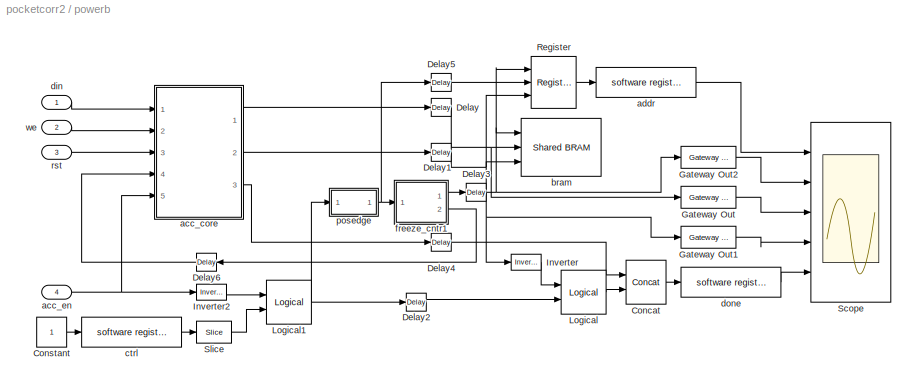
BLOCK [SubSystem] powerb
  AncestorBlock = correlator_library/vacc
  MaskCallbackString = |||||||
  MaskEnableString = on,on,on,on,on,on,on,on
  MaskIconFrame = on
  MaskIconOpaque = on
  MaskIconRotate = none
  MaskIconUnits = autoscale
  MaskInitialization = cursys = gcb;\ndisp(cursys);\n\ncore = [cursys,'/acc_core'];\nif ~strcmp(get_param(core, 'arith_type'), arith_type),\n    set_param(core, 'arith_type', arith_type);\nend
  MaskPromptString = Vector Length|Output Sample Bit Width|Output Binary Point|Add Latency|Arithmetic Type|Input Bit Width|Input Binary Point|Number of Parallel Streams
  MaskSelfModifiable = on
  MaskStyleString = edit,edit,edit,edit,popup(Unsigned|Signed  (2's comp)),edit,edit,edit
  MaskTabNameString = ,,,,,,,
  MaskToolTipString = on,on,on,on,on,on,on,on
  MaskTunableValueString = on,on,on,on,on,on,on,on
  MaskValueString = 32/2-1|32|0|2|Unsigned|72|20|1
  MaskVarAliasString = ,,,,,,,
  MaskVariables = vlen=@1;n_bits=@2;bin_pt=@3;add_latency=@4;arith_type=&5;BitWidthIn=@6;BinPtIn=@7;streams=@8;
  MaskVisibilityString = on,on,on,on,on,on,on,on
  MinAlgLoopOccurrences = off
  Ports = [4]
  RTWSystemCode = Auto
  TreatAsAtomicUnit = off
BLOCK [Reference] powerb/Concat  REF=xbsIndex_r3/Concat
  Ports = [2, 1]
  SourceBlock = xbsIndex_r3/Concat
  SourceType = Xilinx Bus Concatenator
  dbl_ovrd = off
  explicit_period = off
  num_inputs = 2
  period = 1
BLOCK [Constant] powerb/Constant
BLOCK [Reference] powerb/Delay  REF=xbsIndex_r3/Delay
  Ports = [1, 1]
  SourceBlock = xbsIndex_r3/Delay
  SourceType = Xilinx Delay Block
  accept_only_valid = off
  dbl_ovrd = off
  en = off
  explicit_period = off
  init_zero = on
  latency = 1
  period = 1
  reg_retiming = off
  show_param = off
  xl_area = [0, 0, 0, 0, 0, 0, 0]
  xl_use_area = off
BLOCK [Reference] powerb/Delay1  REF=xbsIndex_r3/Delay
  Ports = [1, 1]
  SourceBlock = xbsIndex_r3/Delay
  SourceType = Xilinx Delay Block
  accept_only_valid = off
  dbl_ovrd = off
  en = off
  explicit_period = off
  init_zero = on
  latency = 1
  period = 1
  reg_retiming = off
  show_param = off
  xl_area = [0, 0, 0, 0, 0, 0, 0]
  xl_use_area = off
BLOCK [Reference] powerb/Delay2  REF=xbsIndex_r3/Delay
  Ports = [1, 1]
  SourceBlock = xbsIndex_r3/Delay
  SourceType = Xilinx Delay Block
  accept_only_valid = off
  dbl_ovrd = off
  en = off
  explicit_period = off
  init_zero = on
  latency = 6
  period = 1
  reg_retiming = off
  show_param = off
  xl_area = [0, 0, 0, 0, 0, 0, 0]
  xl_use_area = off
BLOCK [Reference] powerb/Delay3  REF=xbsIndex_r3/Delay
  Ports = [1, 1]
  SourceBlock = xbsIndex_r3/Delay
  SourceType = Xilinx Delay Block
  accept_only_valid = off
  dbl_ovrd = off
  en = off
  explicit_period = off
  init_zero = on
  latency = 4
  period = 1
  reg_retiming = off
  show_param = off
  xl_area = [0, 0, 0, 0, 0, 0, 0]
  xl_use_area = off
BLOCK [Reference] powerb/Delay4  REF=xbsIndex_r3/Delay
  Ports = [1, 1]
  SourceBlock = xbsIndex_r3/Delay
  SourceType = Xilinx Delay Block
  accept_only_valid = off
  dbl_ovrd = off
  en = off
  explicit_period = on
  init_zero = on
  latency = 2
  period = 1
  reg_retiming = off
  show_param = off
  xl_area = [0, 0, 0, 0, 0, 0, 0]
  xl_use_area = off
BLOCK [Reference] powerb/Delay5  REF=xbsIndex_r3/Delay
  Ports = [1, 1]
  SourceBlock = xbsIndex_r3/Delay
  SourceType = Xilinx Delay Block
  accept_only_valid = off
  dbl_ovrd = off
  en = off
  explicit_period = off
  init_zero = on
  latency = 3
  period = 1
  reg_retiming = off
  show_param = off
  xl_area = [0, 0, 0, 0, 0, 0, 0]
  xl_use_area = off
BLOCK [Reference] powerb/Delay6  REF=xbsIndex_r3/Delay
  Ports = [1, 1]
  SourceBlock = xbsIndex_r3/Delay
  SourceType = Xilinx Delay Block
  accept_only_valid = off
  dbl_ovrd = off
  en = off
  explicit_period = off
  init_zero = on
  latency = 3
  period = 1
  reg_retiming = off
  show_param = off
  xl_area = [0, 0, 0, 0, 0, 0, 0]
  xl_use_area = off
BLOCK [Reference] powerb/Gateway Out  REF=xbsIndex_r3/Gateway Out
  LOCs = {}
  Ports = [1, 1]
  SourceBlock = xbsIndex_r3/Gateway Out
  SourceType = Xilinx Gateway Out
  arith_type = Boolean
  bin_pt = 6
  hdl_port = off
  locs_specified = off
  nbits = 8
  needs_fixed_name = off
  output_type = Double
  overflow = Wrap
  quantization = Truncate
  show_param = off
  timing_constraint = None
  xl_area = [0, 0, 0, 0, 0, 0, 0]
  xl_use_area = off
BLOCK [Reference] powerb/Gateway Out1  REF=xbsIndex_r3/Gateway Out
  LOCs = {}
  Ports = [1, 1]
  SourceBlock = xbsIndex_r3/Gateway Out
  SourceType = Xilinx Gateway Out
  arith_type = Boolean
  bin_pt = 6
  hdl_port = off
  locs_specified = off
  nbits = 8
  needs_fixed_name = off
  output_type = Double
  overflow = Wrap
  quantization = Truncate
  show_param = off
  timing_constraint = None
  xl_area = [0, 0, 0, 0, 0, 0, 0]
  xl_use_area = off
BLOCK [Reference] powerb/Gateway Out2  REF=xbsIndex_r3/Gateway Out
  LOCs = {}
  Ports = [1, 1]
  SourceBlock = xbsIndex_r3/Gateway Out
  SourceType = Xilinx Gateway Out
  arith_type = Boolean
  bin_pt = 6
  hdl_port = off
  locs_specified = off
  nbits = 8
  needs_fixed_name = off
  output_type = Double
  overflow = Wrap
  quantization = Truncate
  show_param = off
  timing_constraint = None
  xl_area = [0, 0, 0, 0, 0, 0, 0]
  xl_use_area = off
BLOCK [Reference] powerb/Inverter  REF=xbsIndex_r3/Inverter
  Ports = [1, 1]
  SourceBlock = xbsIndex_r3/Inverter
  SourceType = Xilinx Inverter
  dbl_ovrd = off
  en = off
  explicit_period = off
  latency = 0
  period = 1
  show_param = off
  xl_area = [0, 0, 0, 0, 0, 0, 0]
  xl_use_area = off
BLOCK [Reference] powerb/Inverter2  REF=xbsIndex_r3/Inverter
  Ports = [1, 1]
  SourceBlock = xbsIndex_r3/Inverter
  SourceType = Xilinx Inverter
  dbl_ovrd = off
  en = off
  explicit_period = off
  latency = 0
  period = 1
  show_param = off
  xl_area = [0, 0, 0, 0, 0, 0, 0]
  xl_use_area = off
BLOCK [Reference] powerb/Logical  REF=xbsIndex_r3/Logical
  Ports = [2, 1]
  SourceBlock = xbsIndex_r3/Logical
  SourceType = Xilinx Logical Block
  align_bp = on
  arith_type = Unsigned
  bin_pt = 2
  dbl_ovrd = off
  en = off
  explicit_period = off
  inputs = 2
  latency = 0
  logical_function = AND
  n_bits = 8
  period = 1
  precision = Full
  show_param = off
  xl_area = [0, 0, 0, 0, 0, 0, 0]
  xl_use_area = off
BLOCK [Reference] powerb/Logical1  REF=xbsIndex_r3/Logical
  Ports = [2, 1]
  SourceBlock = xbsIndex_r3/Logical
  SourceType = Xilinx Logical Block
  align_bp = on
  arith_type = Unsigned
  bin_pt = 2
  dbl_ovrd = off
  en = off
  explicit_period = off
  inputs = 2
  latency = 1
  logical_function = AND
  n_bits = 8
  period = 1
  precision = Full
  show_param = off
  xl_area = [0, 0, 0, 0, 0, 0, 0]
  xl_use_area = off
BLOCK [Reference] powerb/Register  REF=xbsIndex_r3/Register
  Ports = [3, 1]
  SourceBlock = xbsIndex_r3/Register
  SourceType = Xilinx Register Block
  dbl_ovrd = off
  en = on
  explicit_period = off
  init = 0
  out_en = off
  period = 1
  reg_only_valid = off
  rst = on
  show_param = off
  xl_area = [0, 0, 0, 0, 0, 0, 0]
  xl_use_area = off
BLOCK [Scope] powerb/Scope
  DataFormat = StructureWithTime
  LimitDataPoints = off
  NumInputPorts = 5
  Ports = [5]
  YMax = 50~200~4~1~3
  YMin = 0~0~0~0~0
  ZoomMode = xonly
BLOCK [Reference] powerb/Slice  REF=xbsIndex_r3/Slice
  Ports = [1, 1]
  SourceBlock = xbsIndex_r3/Slice
  SourceType = Xilinx Slice Block
  base0 = LSB of Input
  base1 = MSB of Input
  bit0 = 0
  bit1 = 0
  boolean_output = on
  dbl_ovrd = off
  explicit_period = off
  mode = Lower Bit Location + Width
  nbits = 1
  period = 1
BLOCK [SubSystem] powerb/acc_core
  MaskCallbackString = |||||||
  MaskEnableString = on,on,on,on,on,on,on,on
  MaskIconFrame = on
  MaskIconOpaque = on
  MaskIconRotate = none
  MaskIconUnits = autoscale
  MaskInitialization = acc_core_mask;
  MaskPromptString = Vector Length|Output Sample Bit Width|Output Binary Point|Add Latency|Arithmetic Type|Input Bit Width|Input Binary Point|Number of Parallel Streams
  MaskSelfModifiable = on
  MaskStyleString = edit,edit,edit,edit,popup(Unsigned|Signed  (2's comp)),edit,edit,edit
  MaskTabNameString = ,,,,,,,
  MaskToolTipString = on,on,on,on,on,on,on,on
  MaskTunableValueString = on,on,on,on,on,on,on,on
  MaskValueString = vlen|n_bits|bin_pt|add_latency|Unsigned|BitWidthIn|BinPtIn|streams
  MaskVarAliasString = ,,,,,,,
  MaskVariables = vlen=@1;n_bits=@2;bin_pt=@3;add_latency=@4;arith_type=&5;BitWidthIn=@6;BinPtIn=@7;streams=@8;
  MaskVisibilityString = on,on,on,on,on,on,on,on
  MinAlgLoopOccurrences = off
  Ports = [5, 3]
  RTWSystemCode = Auto
  TreatAsAtomicUnit = off
BLOCK [Inport] powerb/acc_core/acc_en
  IconDisplay = Port number
  LatchInput = off
  Port = 5
BLOCK [Reference] powerb/acc_core/const0  REF=xbsIndex_r3/Constant
  Ports = [0, 1]
  SourceBlock = xbsIndex_r3/Constant
  SourceType = Xilinx Constant Block
  arith_type = Unsigned
  bin_pt = bin_pt
  carry = CIN
  const = 0
  dbl_ovrd = off
  equ = P=C
  explicit_period = on
  inp1 = P
  inp2 = PCIN>>17
  iostate = 0
  n_bits = n_bits
  opr = +
  opselect = C
  period = 1
BLOCK [Reference] powerb/acc_core/const1  REF=xbsIndex_r3/Constant
  Ports = [0, 1]
  SourceBlock = xbsIndex_r3/Constant
  SourceType = Xilinx Constant Block
  arith_type = Boolean
  bin_pt = 0
  carry = CIN
  const = 0
  dbl_ovrd = off
  equ = P=C
  explicit_period = on
  inp1 = P
  inp2 = PCIN>>17
  iostate = 0
  n_bits = 1
  opr = +
  opselect = C
  period = 1
BLOCK [Inport] powerb/acc_core/din
  IconDisplay = Port number
  LatchInput = off
  Port = 1
BLOCK [Outport] powerb/acc_core/dout
  BusOutputAsStruct = off
  IconDisplay = Port number
BLOCK [Outport] powerb/acc_core/empty
  BusOutputAsStruct = off
  IconDisplay = Port number
  Port = 3
BLOCK [Inport] powerb/acc_core/re
  IconDisplay = Port number
  LatchInput = off
  Port = 4
BLOCK [Inport] powerb/acc_core/rst
  IconDisplay = Port number
  LatchInput = off
  Port = 3
BLOCK [Reference] powerb/acc_core/vacc_fifo1  REF=correlator_library/vacc_fifo  (lib defined in mdl_61a1cd724cd8)
  BinPtIn = BinPtIn
  BitWidthIn = BitWidthIn
  Ports = [7, 8]
  ShowPortLabels = on
  SourceBlock = correlator_library/vacc_fifo
  SourceType = vacc_fifo
  add_latency = add_latency
  arith_type = Unsigned
  bin_pt = bin_pt
  n_bits = n_bits
  stream = 1
  streams = streams
  vlen = vlen
BLOCK [Outport] powerb/acc_core/valid
  BusOutputAsStruct = off
  IconDisplay = Port number
  Port = 2
BLOCK [Inport] powerb/acc_core/we
  IconDisplay = Port number
  LatchInput = off
  Port = 2
BLOCK [Inport] powerb/acc_en
  IconDisplay = Port number
  LatchInput = off
  Port = 4
BLOCK [Reference] powerb/addr  REF=xps_library/software register  (lib defined in mdl_00b5cec29cd0, mdl_02ab6ecaa3d1, +5 more)
  Ports = [1, 1]
  ShowPortLabels = on
  SourceBlock = xps_library/software register
  Tag = xps:sw_reg
  arith_type = Unsigned
  bin_pt = 0
  bitwidth = 32
  gw_name = pocketcorr2_powerb_addr_user_data_in
  io_dir = To Processor
  sample_period = 1
BLOCK [Reference] powerb/bram  REF=xps_library/Shared BRAM  (lib defined in mdl_00b5cec29cd0, mdl_02ab6ecaa3d1, +5 more)
  Ports = [3, 1]
  ShowPortLabels = on
  SourceBlock = xps_library/Shared BRAM
  Tag = xps:bram
  addr_width = 11
  arith_type = Signed  (2's comp)
  data_bin_pt = bin_pt
  data_width = 32
  init_vals = 0
  sample_rate = 1
BLOCK [Reference] powerb/ctrl  REF=xps_library/software register  (lib defined in mdl_00b5cec29cd0, mdl_02ab6ecaa3d1, +5 more)
  Ports = [1, 1]
  ShowPortLabels = on
  SourceBlock = xps_library/software register
  Tag = xps:sw_reg
  arith_type = Unsigned
  bin_pt = 0
  bitwidth = 32
  gw_name = pocketcorr2_powerb_ctrl_user_data_out
  io_dir = From Processor
  sample_period = 1
BLOCK [Inport] powerb/din
  IconDisplay = Port number
  LatchInput = off
  Port = 1
BLOCK [Reference] powerb/done  REF=xps_library/software register  (lib defined in mdl_00b5cec29cd0, mdl_02ab6ecaa3d1, +5 more)
  Ports = [1, 1]
  ShowPortLabels = on
  SourceBlock = xps_library/software register
  Tag = xps:sw_reg
  arith_type = Unsigned
  bin_pt = 0
  bitwidth = 32
  gw_name = pocketcorr2_powerb_done_user_data_in
  io_dir = To Processor
  sample_period = 1
BLOCK [SubSystem] powerb/freeze_cntr1
  MaskEnableString = on
  MaskIconFrame = on
  MaskIconOpaque = on
  MaskIconRotate = none
  MaskIconUnits = autoscale
  MaskPromptString = Counter Length (2^?)
  MaskStyleString = edit
  MaskToolTipString = on
  MaskTunableValueString = on
  MaskValueString = 11
  MaskVariables = CounterBits=@1;
  MaskVisibilityString = on
  MinAlgLoopOccurrences = off
  Ports = [1, 2]
  RTWSystemCode = Auto
  TreatAsAtomicUnit = off
BLOCK [Reference] powerb/freeze_cntr1/Constant5  REF=xbsIndex_r3/Constant
  Ports = [0, 1]
  SourceBlock = xbsIndex_r3/Constant
  SourceType = Xilinx Constant Block
  arith_type = Unsigned
  bin_pt = 0
  carry = CIN
  const = 2^CounterBits - 2
  dbl_ovrd = off
  equ = P=C
  explicit_period = off
  inp1 = P
  inp2 = PCIN>>17
  iostate = 0
  n_bits = CounterBits
  opr = +
  opselect = C
  period = 1
BLOCK [Reference] powerb/freeze_cntr1/Counter3  REF=xbsIndex_r3/Counter
  Ports = [2, 1]
  SourceBlock = xbsIndex_r3/Counter
  SourceType = Xilinx Counter Block
  arith_type = Unsigned
  bin_pt = 0
  cnt_by_val = 1
  cnt_to = 1023
  cnt_type = Free Running
  dbl_ovrd = off
  en = on
  explicit_period = on
  gen_core = off
  load_pin = off
  n_bits = CounterBits
  operation = Up
  period = 1
  rst = on
  show_param = off
  start_count = 0
  use_rpm = on
  xl_area = [0, 0, 0, 0, 0, 0, 0]
  xl_use_area = off
BLOCK [Reference] powerb/freeze_cntr1/Delay  REF=xbsIndex_r3/Delay
  Ports = [1, 1]
  SourceBlock = xbsIndex_r3/Delay
  SourceType = Xilinx Delay Block
  accept_only_valid = off
  dbl_ovrd = off
  en = off
  explicit_period = off
  init_zero = on
  latency = 1
  period = 1
  reg_retiming = off
  show_param = off
  xl_area = [0, 0, 0, 0, 0, 0, 0]
  xl_use_area = off
BLOCK [Reference] powerb/freeze_cntr1/Inverter  REF=xbsIndex_r3/Inverter
  Ports = [1, 1]
  SourceBlock = xbsIndex_r3/Inverter
  SourceType = Xilinx Inverter
  dbl_ovrd = off
  en = off
  explicit_period = off
  latency = 0
  period = 1
  show_param = off
  xl_area = [0, 0, 0, 0, 0, 0, 0]
  xl_use_area = off
BLOCK [Reference] powerb/freeze_cntr1/Logical1  REF=xbsIndex_r3/Logical
  Ports = [2, 1]
  SourceBlock = xbsIndex_r3/Logical
  SourceType = Xilinx Logical Block
  align_bp = on
  arith_type = Unsigned
  bin_pt = 2
  dbl_ovrd = off
  en = off
  explicit_period = off
  inputs = 2
  latency = 0
  logical_function = AND
  n_bits = 8
  period = 1
  precision = Full
  show_param = off
  xl_area = [0, 0, 0, 0, 0, 0, 0]
  xl_use_area = off
BLOCK [Reference] powerb/freeze_cntr1/Logical2  REF=xbsIndex_r3/Logical
  Ports = [2, 1]
  SourceBlock = xbsIndex_r3/Logical
  SourceType = Xilinx Logical Block
  align_bp = on
  arith_type = Unsigned
  bin_pt = 2
  dbl_ovrd = off
  en = off
  explicit_period = off
  inputs = 2
  latency = 0
  logical_function = OR
  n_bits = 8
  period = 1
  precision = Full
  show_param = off
  xl_area = [0, 0, 0, 0, 0, 0, 0]
  xl_use_area = off
BLOCK [Reference] powerb/freeze_cntr1/Logical3  REF=xbsIndex_r3/Logical
  Ports = [2, 1]
  SourceBlock = xbsIndex_r3/Logical
  SourceType = Xilinx Logical Block
  align_bp = on
  arith_type = Unsigned
  bin_pt = 2
  dbl_ovrd = off
  en = off
  explicit_period = off
  inputs = 2
  latency = 0
  logical_function = OR
  n_bits = 8
  period = 1
  precision = Full
  show_param = off
  xl_area = [0, 0, 0, 0, 0, 0, 0]
  xl_use_area = off
BLOCK [Reference] powerb/freeze_cntr1/Relational5  REF=xbsIndex_r3/Relational
  Ports = [2, 1]
  SourceBlock = xbsIndex_r3/Relational
  SourceType = Xilinx Relational Block
  dbl_ovrd = off
  en = off
  explicit_period = off
  latency = 1
  mode = a<b
  period = 1
  show_param = off
  xl_area = [0, 0, 0, 0, 0, 0, 0]
  xl_use_area = off
BLOCK [Outport] powerb/freeze_cntr1/addr
  BusOutputAsStruct = off
  IconDisplay = Port number
BLOCK [SubSystem] powerb/freeze_cntr1/negedge
  MinAlgLoopOccurrences = off
  Ports = [1, 1]
  RTWSystemCode = Auto
  TreatAsAtomicUnit = off
BLOCK [Reference] powerb/freeze_cntr1/negedge/Delay  REF=xbsIndex_r3/Delay
  Ports = [1, 1]
  SourceBlock = xbsIndex_r3/Delay
  SourceType = Xilinx Delay Block
  accept_only_valid = off
  dbl_ovrd = off
  en = off
  explicit_period = off
  init_zero = on
  latency = 1
  period = 1
  reg_retiming = off
  show_param = off
  xl_area = [0, 0, 0, 0, 0, 0, 0]
  xl_use_area = off
BLOCK [Reference] powerb/freeze_cntr1/negedge/Inverter  REF=xbsIndex_r3/Inverter
  Ports = [1, 1]
  SourceBlock = xbsIndex_r3/Inverter
  SourceType = Xilinx Inverter
  dbl_ovrd = off
  en = off
  explicit_period = off
  latency = 0
  period = 1
  show_param = off
  xl_area = [0, 0, 0, 0, 0, 0, 0]
  xl_use_area = off
BLOCK [Reference] powerb/freeze_cntr1/negedge/Logical  REF=xbsIndex_r3/Logical
  Ports = [2, 1]
  SourceBlock = xbsIndex_r3/Logical
  SourceType = Xilinx Logical Block
  align_bp = on
  arith_type = Unsigned
  bin_pt = 2
  dbl_ovrd = off
  en = off
  explicit_period = off
  inputs = 2
  latency = 0
  logical_function = AND
  n_bits = 8
  period = 1
  precision = Full
  show_param = off
  xl_area = [0, 0, 0, 0, 0, 0, 0]
  xl_use_area = off
BLOCK [Inport] powerb/freeze_cntr1/negedge/in
  IconDisplay = Port number
  LatchInput = off
  Port = 1
BLOCK [Outport] powerb/freeze_cntr1/negedge/out
  BusOutputAsStruct = off
  IconDisplay = Port number
BLOCK [Inport] powerb/freeze_cntr1/rst
  IconDisplay = Port number
  LatchInput = off
  Port = 1
BLOCK [Outport] powerb/freeze_cntr1/we
  BusOutputAsStruct = off
  IconDisplay = Port number
  Port = 2
BLOCK [SubSystem] powerb/posedge
  MinAlgLoopOccurrences = off
  Ports = [1, 1]
  RTWSystemCode = Auto
  TreatAsAtomicUnit = off
BLOCK [Reference] powerb/posedge/Delay  REF=xbsIndex_r3/Delay
  Ports = [1, 1]
  SourceBlock = xbsIndex_r3/Delay
  SourceType = Xilinx Delay Block
  accept_only_valid = off
  dbl_ovrd = off
  en = off
  explicit_period = off
  init_zero = on
  latency = 1
  period = 1
  reg_retiming = off
  show_param = off
  xl_area = [0, 0, 0, 0, 0, 0, 0]
  xl_use_area = off
BLOCK [Reference] powerb/posedge/Inverter  REF=xbsIndex_r3/Inverter
  Ports = [1, 1]
  SourceBlock = xbsIndex_r3/Inverter
  SourceType = Xilinx Inverter
  dbl_ovrd = off
  en = off
  explicit_period = off
  latency = 0
  period = 1
  show_param = off
  xl_area = [0, 0, 0, 0, 0, 0, 0]
  xl_use_area = off
BLOCK [Reference] powerb/posedge/Logical  REF=xbsIndex_r3/Logical
  Ports = [2, 1]
  SourceBlock = xbsIndex_r3/Logical
  SourceType = Xilinx Logical Block
  align_bp = on
  arith_type = Unsigned
  bin_pt = 2
  dbl_ovrd = off
  en = off
  explicit_period = off
  inputs = 2
  latency = 0
  logical_function = AND
  n_bits = 8
  period = 1
  precision = Full
  show_param = off
  xl_area = [0, 0, 0, 0, 0, 0, 0]
  xl_use_area = off
BLOCK [Inport] powerb/posedge/in
  IconDisplay = Port number
  LatchInput = off
  Port = 1
BLOCK [Outport] powerb/posedge/out
  BusOutputAsStruct = off
  IconDisplay = Port number
BLOCK [Inport] powerb/rst
  IconDisplay = Port number
  LatchInput = off
  Port = 3
BLOCK [Inport] powerb/we
  IconDisplay = Port number
  LatchInput = off
  Port = 2
BLOCK [Reference] reset  REF=xbsIndex_r3/Gateway Out
  LOCs = {}
  Ports = [1, 1]
  SourceBlock = xbsIndex_r3/Gateway Out
  SourceType = Xilinx Gateway Out
  arith_type = Boolean
  bin_pt = 6
  hdl_port = on
  locs_specified = off
  nbits = 8
  needs_fixed_name = off
  output_type = Double
  overflow = Wrap
  quantization = Truncate
  show_param = off
  timing_constraint = None
  xl_area = [0, 0, 0, 0, 0, 0, 0]
  xl_use_area = off
BLOCK [SubSystem] ri_to_c
  AncestorBlock = fft_library/ri_to_c
  MaskEnableString = on
  MaskIconFrame = on
  MaskIconOpaque = on
  MaskIconRotate = none
  MaskIconUnits = autoscale
  MaskPromptString = I think cookies are delicious
  MaskSelfModifiable = on
  MaskStyleString = checkbox
  MaskToolTipString = on
  MaskTunableValueString = on
  MaskValueString = on
  MaskVariables = likes_cookies=@1;
  MaskVisibilityString = on
  MinAlgLoopOccurrences = off
  Ports = [2, 1]
  RTWSystemCode = Auto
  TreatAsAtomicUnit = off
BLOCK [Reference] ri_to_c/Concat  REF=xbsIndex_r3/Concat
  Ports = [2, 1]
  SourceBlock = xbsIndex_r3/Concat
  SourceType = Xilinx Bus Concatenator
  dbl_ovrd = off
  explicit_period = on
  num_inputs = 2
  period = 1
BLOCK [Reference] ri_to_c/Reinterpret  REF=xbsIndex_r3/Reinterpret
  Ports = [1, 1]
  SourceBlock = xbsIndex_r3/Reinterpret
  SourceType = Xilinx Type Reinterpreting Block
  arith_type = Unsigned
  bin_pt = 0
  force_arith_type = on
  force_bin_pt = on
  force_valid = on
BLOCK [Reference] ri_to_c/Reinterpret1  REF=xbsIndex_r3/Reinterpret
  Ports = [1, 1]
  SourceBlock = xbsIndex_r3/Reinterpret
  SourceType = Xilinx Type Reinterpreting Block
  arith_type = Unsigned
  bin_pt = 0
  force_arith_type = on
  force_bin_pt = on
  force_valid = on
BLOCK [Outport] ri_to_c/c
  BusOutputAsStruct = off
  IconDisplay = Port number
BLOCK [Inport] ri_to_c/im
  IconDisplay = Port number
  LatchInput = off
  Port = 2
BLOCK [Inport] ri_to_c/re
  IconDisplay = Port number
  LatchInput = off
  Port = 1
BLOCK [SubSystem] ri_to_c2
  AncestorBlock = fft_library/ri_to_c
  MaskEnableString = on
  MaskIconFrame = on
  MaskIconOpaque = on
  MaskIconRotate = none
  MaskIconUnits = autoscale
  MaskPromptString = I think cookies are delicious
  MaskSelfModifiable = on
  MaskStyleString = checkbox
  MaskToolTipString = on
  MaskTunableValueString = on
  MaskValueString = on
  MaskVariables = likes_cookies=@1;
  MaskVisibilityString = on
  MinAlgLoopOccurrences = off
  Ports = [2, 1]
  RTWSystemCode = Auto
  TreatAsAtomicUnit = off
BLOCK [Reference] ri_to_c2/Concat  REF=xbsIndex_r3/Concat
  Ports = [2, 1]
  SourceBlock = xbsIndex_r3/Concat
  SourceType = Xilinx Bus Concatenator
  dbl_ovrd = off
  explicit_period = on
  num_inputs = 2
  period = 1
BLOCK [Reference] ri_to_c2/Reinterpret  REF=xbsIndex_r3/Reinterpret
  Ports = [1, 1]
  SourceBlock = xbsIndex_r3/Reinterpret
  SourceType = Xilinx Type Reinterpreting Block
  arith_type = Unsigned
  bin_pt = 0
  force_arith_type = on
  force_bin_pt = on
  force_valid = on
BLOCK [Reference] ri_to_c2/Reinterpret1  REF=xbsIndex_r3/Reinterpret
  Ports = [1, 1]
  SourceBlock = xbsIndex_r3/Reinterpret
  SourceType = Xilinx Type Reinterpreting Block
  arith_type = Unsigned
  bin_pt = 0
  force_arith_type = on
  force_bin_pt = on
  force_valid = on
BLOCK [Outport] ri_to_c2/c
  BusOutputAsStruct = off
  IconDisplay = Port number
BLOCK [Inport] ri_to_c2/im
  IconDisplay = Port number
  LatchInput = off
  Port = 2
BLOCK [Inport] ri_to_c2/re
  IconDisplay = Port number
  LatchInput = off
  Port = 1
BLOCK [Reference] sync  REF=xbsIndex_r3/Gateway Out
  LOCs = {}
  Ports = [1, 1]
  SourceBlock = xbsIndex_r3/Gateway Out
  SourceType = Xilinx Gateway Out
  arith_type = Boolean
  bin_pt = 6
  hdl_port = on
  locs_specified = off
  nbits = 8
  needs_fixed_name = off
  output_type = Double
  overflow = Wrap
  quantization = Truncate
  show_param = off
  timing_constraint = None
  xl_area = [0, 0, 0, 0, 0, 0, 0]
  xl_use_area = off
BLOCK [Reference] sync_delay  REF=delay_lib/sync_delay  (lib defined in mdl_032c7a696b9b)
  DelayLen = 4
  Ports = [1, 1]
  ShowPortLabels = on
  SourceBlock = delay_lib/sync_delay
BLOCK [Scope] uncorrelated
  DataFormat = StructureWithTime
  NumInputPorts = 3
  Ports = [3]
  SaveName = ScopeData2
  YMax = 5~5~5
  YMin = -5~-5~-5
  ZoomMode = xonly
BLOCK [Reference] we1  REF=xbsIndex_r3/Gateway Out
  LOCs = {}
  Ports = [1, 1]
  SourceBlock = xbsIndex_r3/Gateway Out
  SourceType = Xilinx Gateway Out
  arith_type = Boolean
  bin_pt = 6
  hdl_port = on
  locs_specified = off
  nbits = 8
  needs_fixed_name = off
  output_type = Double
  overflow = Wrap
  quantization = Truncate
  show_param = off
  timing_constraint = None
  xl_area = [0, 0, 0, 0, 0, 0, 0]
  xl_use_area = off
BLOCK [SubSystem] xcorr
  AncestorBlock = correlator_library/vacc
  MaskCallbackString = |||||||
  MaskEnableString = on,on,on,on,on,on,on,on
  MaskIconFrame = on
  MaskIconOpaque = on
  MaskIconRotate = none
  MaskIconUnits = autoscale
  MaskInitialization = cursys = gcb;\ndisp(cursys);\n\ncore = [cursys,'/acc_core'];\nif ~strcmp(get_param(core, 'arith_type'), arith_type),\n    set_param(core, 'arith_type', arith_type);\nend
  MaskPromptString = Vector Length|Output Sample Bit Width|Output Binary Point|Add Latency|Arithmetic Type|Input Bit Width|Input Binary Point|Number of Parallel Streams
  MaskSelfModifiable = on
  MaskStyleString = edit,edit,edit,edit,popup(Unsigned|Signed  (2's comp)),edit,edit,edit
  MaskTabNameString = ,,,,,,,
  MaskToolTipString = on,on,on,on,on,on,on,on
  MaskTunableValueString = on,on,on,on,on,on,on,on
  MaskValueString = 32/2-1|32|0|2|Unsigned|72|20|1
  MaskVarAliasString = ,,,,,,,
  MaskVariables = vlen=@1;n_bits=@2;bin_pt=@3;add_latency=@4;arith_type=&5;BitWidthIn=@6;BinPtIn=@7;streams=@8;
  MaskVisibilityString = on,on,on,on,on,on,on,on
  MinAlgLoopOccurrences = off
  Ports = [4]
  RTWSystemCode = Auto
  TreatAsAtomicUnit = off
BLOCK [Reference] xcorr/Concat  REF=xbsIndex_r3/Concat
  Ports = [2, 1]
  SourceBlock = xbsIndex_r3/Concat
  SourceType = Xilinx Bus Concatenator
  dbl_ovrd = off
  explicit_period = off
  num_inputs = 2
  period = 1
BLOCK [Constant] xcorr/Constant
BLOCK [Reference] xcorr/Delay  REF=xbsIndex_r3/Delay
  Ports = [1, 1]
  SourceBlock = xbsIndex_r3/Delay
  SourceType = Xilinx Delay Block
  accept_only_valid = off
  dbl_ovrd = off
  en = off
  explicit_period = off
  init_zero = on
  latency = 1
  period = 1
  reg_retiming = off
  show_param = off
  xl_area = [0, 0, 0, 0, 0, 0, 0]
  xl_use_area = off
BLOCK [Reference] xcorr/Delay1  REF=xbsIndex_r3/Delay
  Ports = [1, 1]
  SourceBlock = xbsIndex_r3/Delay
  SourceType = Xilinx Delay Block
  accept_only_valid = off
  dbl_ovrd = off
  en = off
  explicit_period = off
  init_zero = on
  latency = 1
  period = 1
  reg_retiming = off
  show_param = off
  xl_area = [0, 0, 0, 0, 0, 0, 0]
  xl_use_area = off
BLOCK [Reference] xcorr/Delay2  REF=xbsIndex_r3/Delay
  Ports = [1, 1]
  SourceBlock = xbsIndex_r3/Delay
  SourceType = Xilinx Delay Block
  accept_only_valid = off
  dbl_ovrd = off
  en = off
  explicit_period = off
  init_zero = on
  latency = 6
  period = 1
  reg_retiming = off
  show_param = off
  xl_area = [0, 0, 0, 0, 0, 0, 0]
  xl_use_area = off
BLOCK [Reference] xcorr/Delay3  REF=xbsIndex_r3/Delay
  Ports = [1, 1]
  SourceBlock = xbsIndex_r3/Delay
  SourceType = Xilinx Delay Block
  accept_only_valid = off
  dbl_ovrd = off
  en = off
  explicit_period = off
  init_zero = on
  latency = 4
  period = 1
  reg_retiming = off
  show_param = off
  xl_area = [0, 0, 0, 0, 0, 0, 0]
  xl_use_area = off
BLOCK [Reference] xcorr/Delay4  REF=xbsIndex_r3/Delay
  Ports = [1, 1]
  SourceBlock = xbsIndex_r3/Delay
  SourceType = Xilinx Delay Block
  accept_only_valid = off
  dbl_ovrd = off
  en = off
  explicit_period = on
  init_zero = on
  latency = 2
  period = 1
  reg_retiming = off
  show_param = off
  xl_area = [0, 0, 0, 0, 0, 0, 0]
  xl_use_area = off
BLOCK [Reference] xcorr/Delay5  REF=xbsIndex_r3/Delay
  Ports = [1, 1]
  SourceBlock = xbsIndex_r3/Delay
  SourceType = Xilinx Delay Block
  accept_only_valid = off
  dbl_ovrd = off
  en = off
  explicit_period = off
  init_zero = on
  latency = 3
  period = 1
  reg_retiming = off
  show_param = off
  xl_area = [0, 0, 0, 0, 0, 0, 0]
  xl_use_area = off
BLOCK [Reference] xcorr/Delay6  REF=xbsIndex_r3/Delay
  Ports = [1, 1]
  SourceBlock = xbsIndex_r3/Delay
  SourceType = Xilinx Delay Block
  accept_only_valid = off
  dbl_ovrd = off
  en = off
  explicit_period = off
  init_zero = on
  latency = 3
  period = 1
  reg_retiming = off
  show_param = off
  xl_area = [0, 0, 0, 0, 0, 0, 0]
  xl_use_area = off
BLOCK [Reference] xcorr/Gateway Out  REF=xbsIndex_r3/Gateway Out
  LOCs = {}
  Ports = [1, 1]
  SourceBlock = xbsIndex_r3/Gateway Out
  SourceType = Xilinx Gateway Out
  arith_type = Boolean
  bin_pt = 6
  hdl_port = off
  locs_specified = off
  nbits = 8
  needs_fixed_name = off
  output_type = Double
  overflow = Wrap
  quantization = Truncate
  show_param = off
  timing_constraint = None
  xl_area = [0, 0, 0, 0, 0, 0, 0]
  xl_use_area = off
BLOCK [Reference] xcorr/Gateway Out1  REF=xbsIndex_r3/Gateway Out
  LOCs = {}
  Ports = [1, 1]
  SourceBlock = xbsIndex_r3/Gateway Out
  SourceType = Xilinx Gateway Out
  arith_type = Boolean
  bin_pt = 6
  hdl_port = off
  locs_specified = off
  nbits = 8
  needs_fixed_name = off
  output_type = Double
  overflow = Wrap
  quantization = Truncate
  show_param = off
  timing_constraint = None
  xl_area = [0, 0, 0, 0, 0, 0, 0]
  xl_use_area = off
BLOCK [Reference] xcorr/Gateway Out2  REF=xbsIndex_r3/Gateway Out
  LOCs = {}
  Ports = [1, 1]
  SourceBlock = xbsIndex_r3/Gateway Out
  SourceType = Xilinx Gateway Out
  arith_type = Boolean
  bin_pt = 6
  hdl_port = off
  locs_specified = off
  nbits = 8
  needs_fixed_name = off
  output_type = Double
  overflow = Wrap
  quantization = Truncate
  show_param = off
  timing_constraint = None
  xl_area = [0, 0, 0, 0, 0, 0, 0]
  xl_use_area = off
BLOCK [Reference] xcorr/Inverter  REF=xbsIndex_r3/Inverter
  Ports = [1, 1]
  SourceBlock = xbsIndex_r3/Inverter
  SourceType = Xilinx Inverter
  dbl_ovrd = off
  en = off
  explicit_period = off
  latency = 0
  period = 1
  show_param = off
  xl_area = [0, 0, 0, 0, 0, 0, 0]
  xl_use_area = off
BLOCK [Reference] xcorr/Inverter2  REF=xbsIndex_r3/Inverter
  Ports = [1, 1]
  SourceBlock = xbsIndex_r3/Inverter
  SourceType = Xilinx Inverter
  dbl_ovrd = off
  en = off
  explicit_period = off
  latency = 0
  period = 1
  show_param = off
  xl_area = [0, 0, 0, 0, 0, 0, 0]
  xl_use_area = off
BLOCK [Reference] xcorr/Logical  REF=xbsIndex_r3/Logical
  Ports = [2, 1]
  SourceBlock = xbsIndex_r3/Logical
  SourceType = Xilinx Logical Block
  align_bp = on
  arith_type = Unsigned
  bin_pt = 2
  dbl_ovrd = off
  en = off
  explicit_period = off
  inputs = 2
  latency = 0
  logical_function = AND
  n_bits = 8
  period = 1
  precision = Full
  show_param = off
  xl_area = [0, 0, 0, 0, 0, 0, 0]
  xl_use_area = off
BLOCK [Reference] xcorr/Logical1  REF=xbsIndex_r3/Logical
  Ports = [2, 1]
  SourceBlock = xbsIndex_r3/Logical
  SourceType = Xilinx Logical Block
  align_bp = on
  arith_type = Unsigned
  bin_pt = 2
  dbl_ovrd = off
  en = off
  explicit_period = off
  inputs = 2
  latency = 1
  logical_function = AND
  n_bits = 8
  period = 1
  precision = Full
  show_param = off
  xl_area = [0, 0, 0, 0, 0, 0, 0]
  xl_use_area = off
BLOCK [Reference] xcorr/Register  REF=xbsIndex_r3/Register
  Ports = [3, 1]
  SourceBlock = xbsIndex_r3/Register
  SourceType = Xilinx Register Block
  dbl_ovrd = off
  en = on
  explicit_period = off
  init = 0
  out_en = off
  period = 1
  reg_only_valid = off
  rst = on
  show_param = off
  xl_area = [0, 0, 0, 0, 0, 0, 0]
  xl_use_area = off
BLOCK [Scope] xcorr/Scope
  DataFormat = StructureWithTime
  LimitDataPoints = off
  NumInputPorts = 5
  Ports = [5]
  YMax = 50~200~4~1~3
  YMin = 0~0~0~0~0
  ZoomMode = xonly
BLOCK [Reference] xcorr/Slice  REF=xbsIndex_r3/Slice
  Ports = [1, 1]
  SourceBlock = xbsIndex_r3/Slice
  SourceType = Xilinx Slice Block
  base0 = LSB of Input
  base1 = MSB of Input
  bit0 = 0
  bit1 = 0
  boolean_output = on
  dbl_ovrd = off
  explicit_period = off
  mode = Lower Bit Location + Width
  nbits = 1
  period = 1
BLOCK [SubSystem] xcorr/acc_core
  MaskCallbackString = |||||||
  MaskEnableString = on,on,on,on,on,on,on,on
  MaskIconFrame = on
  MaskIconOpaque = on
  MaskIconRotate = none
  MaskIconUnits = autoscale
  MaskInitialization = acc_core_mask;
  MaskPromptString = Vector Length|Output Sample Bit Width|Output Binary Point|Add Latency|Arithmetic Type|Input Bit Width|Input Binary Point|Number of Parallel Streams
  MaskSelfModifiable = on
  MaskStyleString = edit,edit,edit,edit,popup(Unsigned|Signed  (2's comp)),edit,edit,edit
  MaskTabNameString = ,,,,,,,
  MaskToolTipString = on,on,on,on,on,on,on,on
  MaskTunableValueString = on,on,on,on,on,on,on,on
  MaskValueString = vlen|n_bits|bin_pt|add_latency|Unsigned|BitWidthIn|BinPtIn|streams
  MaskVarAliasString = ,,,,,,,
  MaskVariables = vlen=@1;n_bits=@2;bin_pt=@3;add_latency=@4;arith_type=&5;BitWidthIn=@6;BinPtIn=@7;streams=@8;
  MaskVisibilityString = on,on,on,on,on,on,on,on
  MinAlgLoopOccurrences = off
  Ports = [5, 3]
  RTWSystemCode = Auto
  TreatAsAtomicUnit = off
BLOCK [Inport] xcorr/acc_core/acc_en
  IconDisplay = Port number
  LatchInput = off
  Port = 5
BLOCK [Reference] xcorr/acc_core/const0  REF=xbsIndex_r3/Constant
  Ports = [0, 1]
  SourceBlock = xbsIndex_r3/Constant
  SourceType = Xilinx Constant Block
  arith_type = Unsigned
  bin_pt = bin_pt
  carry = CIN
  const = 0
  dbl_ovrd = off
  equ = P=C
  explicit_period = on
  inp1 = P
  inp2 = PCIN>>17
  iostate = 0
  n_bits = n_bits
  opr = +
  opselect = C
  period = 1
BLOCK [Reference] xcorr/acc_core/const1  REF=xbsIndex_r3/Constant
  Ports = [0, 1]
  SourceBlock = xbsIndex_r3/Constant
  SourceType = Xilinx Constant Block
  arith_type = Boolean
  bin_pt = 0
  carry = CIN
  const = 0
  dbl_ovrd = off
  equ = P=C
  explicit_period = on
  inp1 = P
  inp2 = PCIN>>17
  iostate = 0
  n_bits = 1
  opr = +
  opselect = C
  period = 1
BLOCK [Inport] xcorr/acc_core/din
  IconDisplay = Port number
  LatchInput = off
  Port = 1
BLOCK [Outport] xcorr/acc_core/dout
  BusOutputAsStruct = off
  IconDisplay = Port number
BLOCK [Outport] xcorr/acc_core/empty
  BusOutputAsStruct = off
  IconDisplay = Port number
  Port = 3
BLOCK [Inport] xcorr/acc_core/re
  IconDisplay = Port number
  LatchInput = off
  Port = 4
BLOCK [Inport] xcorr/acc_core/rst
  IconDisplay = Port number
  LatchInput = off
  Port = 3
BLOCK [Reference] xcorr/acc_core/vacc_fifo1  REF=correlator_library/vacc_fifo  (lib defined in mdl_61a1cd724cd8)
  BinPtIn = BinPtIn
  BitWidthIn = BitWidthIn
  Ports = [7, 8]
  ShowPortLabels = on
  SourceBlock = correlator_library/vacc_fifo
  SourceType = vacc_fifo
  add_latency = add_latency
  arith_type = Unsigned
  bin_pt = bin_pt
  n_bits = n_bits
  stream = 1
  streams = streams
  vlen = vlen
BLOCK [Outport] xcorr/acc_core/valid
  BusOutputAsStruct = off
  IconDisplay = Port number
  Port = 2
BLOCK [Inport] xcorr/acc_core/we
  IconDisplay = Port number
  LatchInput = off
  Port = 2
BLOCK [Inport] xcorr/acc_en
  IconDisplay = Port number
  LatchInput = off
  Port = 4
BLOCK [Reference] xcorr/addr  REF=xps_library/software register  (lib defined in mdl_00b5cec29cd0, mdl_02ab6ecaa3d1, +5 more)
  Ports = [1, 1]
  ShowPortLabels = on
  SourceBlock = xps_library/software register
  Tag = xps:sw_reg
  arith_type = Unsigned
  bin_pt = 0
  bitwidth = 32
  gw_name = pocketcorr2_xcorr_addr_user_data_in
  io_dir = To Processor
  sample_period = 1
BLOCK [Reference] xcorr/bram  REF=xps_library/Shared BRAM  (lib defined in mdl_00b5cec29cd0, mdl_02ab6ecaa3d1, +5 more)
  Ports = [3, 1]
  ShowPortLabels = on
  SourceBlock = xps_library/Shared BRAM
  Tag = xps:bram
  addr_width = 11
  arith_type = Signed  (2's comp)
  data_bin_pt = bin_pt
  data_width = 32
  init_vals = 0
  sample_rate = 1
BLOCK [Reference] xcorr/ctrl  REF=xps_library/software register  (lib defined in mdl_00b5cec29cd0, mdl_02ab6ecaa3d1, +5 more)
  Ports = [1, 1]
  ShowPortLabels = on
  SourceBlock = xps_library/software register
  Tag = xps:sw_reg
  arith_type = Unsigned
  bin_pt = 0
  bitwidth = 32
  gw_name = pocketcorr2_xcorr_ctrl_user_data_out
  io_dir = From Processor
  sample_period = 1
BLOCK [Inport] xcorr/din
  IconDisplay = Port number
  LatchInput = off
  Port = 1
BLOCK [Reference] xcorr/done  REF=xps_library/software register  (lib defined in mdl_00b5cec29cd0, mdl_02ab6ecaa3d1, +5 more)
  Ports = [1, 1]
  ShowPortLabels = on
  SourceBlock = xps_library/software register
  Tag = xps:sw_reg
  arith_type = Unsigned
  bin_pt = 0
  bitwidth = 32
  gw_name = pocketcorr2_xcorr_done_user_data_in
  io_dir = To Processor
  sample_period = 1
BLOCK [SubSystem] xcorr/freeze_cntr1
  MaskEnableString = on
  MaskIconFrame = on
  MaskIconOpaque = on
  MaskIconRotate = none
  MaskIconUnits = autoscale
  MaskPromptString = Counter Length (2^?)
  MaskStyleString = edit
  MaskToolTipString = on
  MaskTunableValueString = on
  MaskValueString = 11
  MaskVariables = CounterBits=@1;
  MaskVisibilityString = on
  MinAlgLoopOccurrences = off
  Ports = [1, 2]
  RTWSystemCode = Auto
  TreatAsAtomicUnit = off
BLOCK [Reference] xcorr/freeze_cntr1/Constant5  REF=xbsIndex_r3/Constant
  Ports = [0, 1]
  SourceBlock = xbsIndex_r3/Constant
  SourceType = Xilinx Constant Block
  arith_type = Unsigned
  bin_pt = 0
  carry = CIN
  const = 2^CounterBits - 2
  dbl_ovrd = off
  equ = P=C
  explicit_period = off
  inp1 = P
  inp2 = PCIN>>17
  iostate = 0
  n_bits = CounterBits
  opr = +
  opselect = C
  period = 1
BLOCK [Reference] xcorr/freeze_cntr1/Counter3  REF=xbsIndex_r3/Counter
  Ports = [2, 1]
  SourceBlock = xbsIndex_r3/Counter
  SourceType = Xilinx Counter Block
  arith_type = Unsigned
  bin_pt = 0
  cnt_by_val = 1
  cnt_to = 1023
  cnt_type = Free Running
  dbl_ovrd = off
  en = on
  explicit_period = on
  gen_core = off
  load_pin = off
  n_bits = CounterBits
  operation = Up
  period = 1
  rst = on
  show_param = off
  start_count = 0
  use_rpm = on
  xl_area = [0, 0, 0, 0, 0, 0, 0]
  xl_use_area = off
BLOCK [Reference] xcorr/freeze_cntr1/Delay  REF=xbsIndex_r3/Delay
  Ports = [1, 1]
  SourceBlock = xbsIndex_r3/Delay
  SourceType = Xilinx Delay Block
  accept_only_valid = off
  dbl_ovrd = off
  en = off
  explicit_period = off
  init_zero = on
  latency = 1
  period = 1
  reg_retiming = off
  show_param = off
  xl_area = [0, 0, 0, 0, 0, 0, 0]
  xl_use_area = off
BLOCK [Reference] xcorr/freeze_cntr1/Inverter  REF=xbsIndex_r3/Inverter
  Ports = [1, 1]
  SourceBlock = xbsIndex_r3/Inverter
  SourceType = Xilinx Inverter
  dbl_ovrd = off
  en = off
  explicit_period = off
  latency = 0
  period = 1
  show_param = off
  xl_area = [0, 0, 0, 0, 0, 0, 0]
  xl_use_area = off
BLOCK [Reference] xcorr/freeze_cntr1/Logical1  REF=xbsIndex_r3/Logical
  Ports = [2, 1]
  SourceBlock = xbsIndex_r3/Logical
  SourceType = Xilinx Logical Block
  align_bp = on
  arith_type = Unsigned
  bin_pt = 2
  dbl_ovrd = off
  en = off
  explicit_period = off
  inputs = 2
  latency = 0
  logical_function = AND
  n_bits = 8
  period = 1
  precision = Full
  show_param = off
  xl_area = [0, 0, 0, 0, 0, 0, 0]
  xl_use_area = off
BLOCK [Reference] xcorr/freeze_cntr1/Logical2  REF=xbsIndex_r3/Logical
  Ports = [2, 1]
  SourceBlock = xbsIndex_r3/Logical
  SourceType = Xilinx Logical Block
  align_bp = on
  arith_type = Unsigned
  bin_pt = 2
  dbl_ovrd = off
  en = off
  explicit_period = off
  inputs = 2
  latency = 0
  logical_function = OR
  n_bits = 8
  period = 1
  precision = Full
  show_param = off
  xl_area = [0, 0, 0, 0, 0, 0, 0]
  xl_use_area = off
BLOCK [Reference] xcorr/freeze_cntr1/Logical3  REF=xbsIndex_r3/Logical
  Ports = [2, 1]
  SourceBlock = xbsIndex_r3/Logical
  SourceType = Xilinx Logical Block
  align_bp = on
  arith_type = Unsigned
  bin_pt = 2
  dbl_ovrd = off
  en = off
  explicit_period = off
  inputs = 2
  latency = 0
  logical_function = OR
  n_bits = 8
  period = 1
  precision = Full
  show_param = off
  xl_area = [0, 0, 0, 0, 0, 0, 0]
  xl_use_area = off
BLOCK [Reference] xcorr/freeze_cntr1/Relational5  REF=xbsIndex_r3/Relational
  Ports = [2, 1]
  SourceBlock = xbsIndex_r3/Relational
  SourceType = Xilinx Relational Block
  dbl_ovrd = off
  en = off
  explicit_period = off
  latency = 1
  mode = a<b
  period = 1
  show_param = off
  xl_area = [0, 0, 0, 0, 0, 0, 0]
  xl_use_area = off
BLOCK [Outport] xcorr/freeze_cntr1/addr
  BusOutputAsStruct = off
  IconDisplay = Port number
BLOCK [SubSystem] xcorr/freeze_cntr1/negedge
  MinAlgLoopOccurrences = off
  Ports = [1, 1]
  RTWSystemCode = Auto
  TreatAsAtomicUnit = off
BLOCK [Reference] xcorr/freeze_cntr1/negedge/Delay  REF=xbsIndex_r3/Delay
  Ports = [1, 1]
  SourceBlock = xbsIndex_r3/Delay
  SourceType = Xilinx Delay Block
  accept_only_valid = off
  dbl_ovrd = off
  en = off
  explicit_period = off
  init_zero = on
  latency = 1
  period = 1
  reg_retiming = off
  show_param = off
  xl_area = [0, 0, 0, 0, 0, 0, 0]
  xl_use_area = off
BLOCK [Reference] xcorr/freeze_cntr1/negedge/Inverter  REF=xbsIndex_r3/Inverter
  Ports = [1, 1]
  SourceBlock = xbsIndex_r3/Inverter
  SourceType = Xilinx Inverter
  dbl_ovrd = off
  en = off
  explicit_period = off
  latency = 0
  period = 1
  show_param = off
  xl_area = [0, 0, 0, 0, 0, 0, 0]
  xl_use_area = off
BLOCK [Reference] xcorr/freeze_cntr1/negedge/Logical  REF=xbsIndex_r3/Logical
  Ports = [2, 1]
  SourceBlock = xbsIndex_r3/Logical
  SourceType = Xilinx Logical Block
  align_bp = on
  arith_type = Unsigned
  bin_pt = 2
  dbl_ovrd = off
  en = off
  explicit_period = off
  inputs = 2
  latency = 0
  logical_function = AND
  n_bits = 8
  period = 1
  precision = Full
  show_param = off
  xl_area = [0, 0, 0, 0, 0, 0, 0]
  xl_use_area = off
BLOCK [Inport] xcorr/freeze_cntr1/negedge/in
  IconDisplay = Port number
  LatchInput = off
  Port = 1
BLOCK [Outport] xcorr/freeze_cntr1/negedge/out
  BusOutputAsStruct = off
  IconDisplay = Port number
BLOCK [Inport] xcorr/freeze_cntr1/rst
  IconDisplay = Port number
  LatchInput = off
  Port = 1
BLOCK [Outport] xcorr/freeze_cntr1/we
  BusOutputAsStruct = off
  IconDisplay = Port number
  Port = 2
BLOCK [SubSystem] xcorr/posedge
  MinAlgLoopOccurrences = off
  Ports = [1, 1]
  RTWSystemCode = Auto
  TreatAsAtomicUnit = off
BLOCK [Reference] xcorr/posedge/Delay  REF=xbsIndex_r3/Delay
  Ports = [1, 1]
  SourceBlock = xbsIndex_r3/Delay
  SourceType = Xilinx Delay Block
  accept_only_valid = off
  dbl_ovrd = off
  en = off
  explicit_period = off
  init_zero = on
  latency = 1
  period = 1
  reg_retiming = off
  show_param = off
  xl_area = [0, 0, 0, 0, 0, 0, 0]
  xl_use_area = off
BLOCK [Reference] xcorr/posedge/Inverter  REF=xbsIndex_r3/Inverter
  Ports = [1, 1]
  SourceBlock = xbsIndex_r3/Inverter
  SourceType = Xilinx Inverter
  dbl_ovrd = off
  en = off
  explicit_period = off
  latency = 0
  period = 1
  show_param = off
  xl_area = [0, 0, 0, 0, 0, 0, 0]
  xl_use_area = off
BLOCK [Reference] xcorr/posedge/Logical  REF=xbsIndex_r3/Logical
  Ports = [2, 1]
  SourceBlock = xbsIndex_r3/Logical
  SourceType = Xilinx Logical Block
  align_bp = on
  arith_type = Unsigned
  bin_pt = 2
  dbl_ovrd = off
  en = off
  explicit_period = off
  inputs = 2
  latency = 0
  logical_function = AND
  n_bits = 8
  period = 1
  precision = Full
  show_param = off
  xl_area = [0, 0, 0, 0, 0, 0, 0]
  xl_use_area = off
BLOCK [Inport] xcorr/posedge/in
  IconDisplay = Port number
  LatchInput = off
  Port = 1
BLOCK [Outport] xcorr/posedge/out
  BusOutputAsStruct = off
  IconDisplay = Port number
BLOCK [Inport] xcorr/rst
  IconDisplay = Port number
  LatchInput = off
  Port = 3
BLOCK [Inport] xcorr/we
  IconDisplay = Port number
  LatchInput = off
  Port = 2
BLOCK [Reference] xcorrmult  REF=xbsIndex_r3/Mult
  Ports = [2, 1]
  SourceBlock = xbsIndex_r3/Mult
  SourceType = Xilinx Multiplier
  arith_type = Signed  (2's comp)
  bin_pt = 2
  dbl_ovrd = off
  en = off
  explicit_period = on
  gen_core = off
  latency = 5
  mult_type = Parallel
  n_bits = 8
  overflow = Wrap
  oversample = 2
  period = 1
  pipeline = on
  placement_style = Rectangular Shape
  precision = Full
  quantization = Truncate
  show_param = off
  use_embedded = off
  use_rpm = on
  xl_area = [0, 0, 0, 0, 0, 0, 0]
  xl_use_area = off
LINE CICiim:2 -> Slice:1
NET CICireal:1 -> f2:1, pfb_fir:1
LINE CICireal:2 -> Slice1:1
LINE CICqim:2 -> Slice3:1
LINE CICqreal:1 -> pfb_fir1:1
LINE CICqreal:2 -> Slice2:1
LINE Constant1:1 -> adc:4
NET Constant2:1 -> powera:3, powerb:3, xcorr:3
LINE Constant3:1 -> Relational2:2
LINE Constant4:1 -> Relational1:2
NET Constant5:1 -> fft1:4, fft2:4
LINE Constant:1 -> fft_shift_reg:1
LINE Counter1:1 -> Relational1:1
LINE Counter2:1 -> Relational2:1
NET DDS:1 -> mixer4:2, mixer:2
NET DDS:2 -> mixer4:3, mixer:3
NET DDS:3 -> mixer1:2, mixer5:2
NET DDS:4 -> mixer1:3, mixer5:3
NET DDS:5 -> mixer2:2, mixer6:2
NET DDS:6 -> mixer2:3, mixer6:3
NET DDS:7 -> mixer3:2, mixer7:2
NET DDS:8 -> mixer3:3, mixer7:3
NET Delay16:1 -> Counter1:1, Counter2:1, reset:1, sync:1
LINE Delay1:1 -> powerb:1
NET Delay2:1 -> input:1, xcorr:1
LINE Delay3:1 -> powera:1
LINE Reinterpret1:1 -> Delay2:1
LINE Reinterpret2:1 -> Delay1:1
LINE Reinterpret:1 -> Delay3:1
NET Relational1:1 -> powera:2, powerb:2, we1:1, xcorr:2
NET Relational2:1 -> accen:1, powera:4, powerb:4, xcorr:4
LINE Sine Wave1:1 -> adc:2
LINE Sine Wave:1 -> adc:1
LINE Slice1:1 -> ri_to_c:1
LINE Slice2:1 -> ri_to_c2:1
LINE Slice3:1 -> ri_to_c2:2
LINE Slice:1 -> ri_to_c:2
LINE Step:1 -> adc:3
LINE accen:1 -> controlsignals:2
LINE adc:1 -> mixer:1
LINE adc:13 -> sync_delay:1
LINE adc:2 -> mixer1:1
LINE adc:3 -> mixer2:1
LINE adc:4 -> mixer3:1
LINE adc:5 -> mixer4:1
LINE adc:6 -> mixer5:1
LINE adc:7 -> mixer6:1
LINE adc:8 -> mixer7:1
NET apower:1 -> Reinterpret:1, f0:1
NET bpower:1 -> Reinterpret2:1, f7:1
NET c_to_ri:1 -> apower:1, xcorrmult:1
LINE f0:1 -> correlated:1
LINE f1:1 -> correlated:2
LINE f2:1 -> cic-fft:1
LINE f3:1 -> cic-fft:2
LINE f4:1 -> uncorrelated:1
LINE f5:1 -> uncorrelated:2
LINE f6:1 -> uncorrelated:3
LINE f7:1 -> correlated:3
LINE f8:1 -> cic-fft:3
LINE fft1:1 -> f6:1
NET fft1:2 -> bpower:1, bpower:2, f5:1, xcorrmult:2
LINE fft2:1 -> Delay16:1
NET fft2:2 -> c_to_ri:1, f4:1
NET fft_shift_reg:1 -> fft1:2, fft2:2
LINE input:1 -> controlsignals:4
LINE mixer1:1 -> CICireal:3
LINE mixer1:2 -> CICiim:3
LINE mixer2:1 -> CICireal:4
LINE mixer2:2 -> CICiim:4
LINE mixer3:1 -> CICireal:5
LINE mixer3:2 -> CICiim:5
LINE mixer4:1 -> CICqreal:2
LINE mixer4:2 -> CICqim:2
LINE mixer5:1 -> CICqreal:3
LINE mixer5:2 -> CICqim:3
LINE mixer6:1 -> CICqreal:4
LINE mixer6:2 -> CICqim:4
LINE mixer7:1 -> CICqreal:5
LINE mixer7:2 -> CICqim:5
LINE mixer:1 -> CICireal:2
LINE mixer:2 -> CICiim:2
LINE pfb_fir1:1 -> fft1:1
LINE pfb_fir1:2 -> fft1:3
LINE pfb_fir:1 -> fft2:1
LINE pfb_fir:2 -> fft2:3
LINE powera/Concat:1 -> powera/done:1
LINE powera/Constant:1 -> powera/ctrl:1
NET powera/Delay1:1 -> powera/Gateway Out1:1, powera/Inverter:1, powera/Register:3, powera/bram:3
LINE powera/Delay2:1 -> powera/Logical:2
NET powera/Delay3:1 -> powera/Gateway Out2:1, powera/Register:1, powera/bram:1
LINE powera/Delay4:1 -> powera/Concat:1
LINE powera/Delay5:1 -> powera/Register:2
LINE powera/Delay6:1 -> powera/acc_core:4
NET powera/Delay:1 -> powera/Gateway Out:1, powera/bram:2
LINE powera/Gateway Out1:1 -> powera/Scope:4
LINE powera/Gateway Out2:1 -> powera/Scope:2
LINE powera/Gateway Out:1 -> powera/Scope:3
LINE powera/Inverter2:1 -> powera/Logical1:1
LINE powera/Inverter:1 -> powera/Logical:1
NET powera/Logical1:1 -> powera/Delay2:1, powera/posedge:1
LINE powera/Logical:1 -> powera/Concat:2
LINE powera/Register:1 -> powera/addr:1
LINE powera/Slice:1 -> powera/Logical1:2
LINE powera/acc_core/acc_en:1 -> powera/acc_core/vacc_fifo1:7
LINE powera/acc_core/const0:1 -> powera/acc_core/vacc_fifo1:3
LINE powera/acc_core/const1:1 -> powera/acc_core/vacc_fifo1:4
LINE powera/acc_core/din:1 -> powera/acc_core/vacc_fifo1:1
LINE powera/acc_core/re:1 -> powera/acc_core/vacc_fifo1:6
LINE powera/acc_core/rst:1 -> powera/acc_core/vacc_fifo1:5
LINE powera/acc_core/vacc_fifo1:3 -> powera/acc_core/dout:1
LINE powera/acc_core/vacc_fifo1:4 -> powera/acc_core/valid:1
LINE powera/acc_core/vacc_fifo1:8 -> powera/acc_core/empty:1
LINE powera/acc_core/we:1 -> powera/acc_core/vacc_fifo1:2
LINE powera/acc_core:1 -> powera/Delay:1
LINE powera/acc_core:2 -> powera/Delay1:1
LINE powera/acc_core:3 -> powera/Delay4:1
NET powera/acc_en:1 -> powera/Inverter2:1, powera/acc_core:5
LINE powera/addr:1 -> powera/Scope:1
LINE powera/ctrl:1 -> powera/Slice:1
LINE powera/din:1 -> powera/acc_core:1
LINE powera/done:1 -> powera/Scope:5
LINE powera/freeze_cntr1/Constant5:1 -> powera/freeze_cntr1/Relational5:2
NET powera/freeze_cntr1/Counter3:1 -> powera/freeze_cntr1/Relational5:1, powera/freeze_cntr1/addr:1
LINE powera/freeze_cntr1/Delay:1 -> powera/freeze_cntr1/Logical2:1
LINE powera/freeze_cntr1/Inverter:1 -> powera/freeze_cntr1/Logical1:1
LINE powera/freeze_cntr1/Logical1:1 -> powera/freeze_cntr1/we:1
LINE powera/freeze_cntr1/Logical2:1 -> powera/freeze_cntr1/Logical1:2
NET powera/freeze_cntr1/Logical3:1 -> powera/freeze_cntr1/Counter3:2, powera/freeze_cntr1/Delay:1, powera/freeze_cntr1/Logical2:2
LINE powera/freeze_cntr1/Relational5:1 -> powera/freeze_cntr1/Logical3:2
LINE powera/freeze_cntr1/negedge/Delay:1 -> powera/freeze_cntr1/negedge/Logical:1
LINE powera/freeze_cntr1/negedge/Inverter:1 -> powera/freeze_cntr1/negedge/Logical:2
LINE powera/freeze_cntr1/negedge/Logical:1 -> powera/freeze_cntr1/negedge/out:1
NET powera/freeze_cntr1/negedge/in:1 -> powera/freeze_cntr1/negedge/Delay:1, powera/freeze_cntr1/negedge/Inverter:1
LINE powera/freeze_cntr1/negedge:1 -> powera/freeze_cntr1/Logical3:1
NET powera/freeze_cntr1/rst:1 -> powera/freeze_cntr1/Counter3:1, powera/freeze_cntr1/Inverter:1, powera/freeze_cntr1/negedge:1
LINE powera/freeze_cntr1:1 -> powera/Delay3:1
LINE powera/freeze_cntr1:2 -> powera/Delay6:1
LINE powera/posedge/Delay:1 -> powera/posedge/Inverter:1
LINE powera/posedge/Inverter:1 -> powera/posedge/Logical:1
LINE powera/posedge/Logical:1 -> powera/posedge/out:1
NET powera/posedge/in:1 -> powera/posedge/Delay:1, powera/posedge/Logical:2
NET powera/posedge:1 -> powera/Delay5:1, powera/freeze_cntr1:1
LINE powera/rst:1 -> powera/acc_core:3
LINE powera/we:1 -> powera/acc_core:2
LINE powerb/Concat:1 -> powerb/done:1
LINE powerb/Constant:1 -> powerb/ctrl:1
NET powerb/Delay1:1 -> powerb/Gateway Out1:1, powerb/Inverter:1, powerb/Register:3, powerb/bram:3
LINE powerb/Delay2:1 -> powerb/Logical:2
NET powerb/Delay3:1 -> powerb/Gateway Out2:1, powerb/Register:1, powerb/bram:1
LINE powerb/Delay4:1 -> powerb/Concat:1
LINE powerb/Delay5:1 -> powerb/Register:2
LINE powerb/Delay6:1 -> powerb/acc_core:4
NET powerb/Delay:1 -> powerb/Gateway Out:1, powerb/bram:2
LINE powerb/Gateway Out1:1 -> powerb/Scope:4
LINE powerb/Gateway Out2:1 -> powerb/Scope:2
LINE powerb/Gateway Out:1 -> powerb/Scope:3
LINE powerb/Inverter2:1 -> powerb/Logical1:1
LINE powerb/Inverter:1 -> powerb/Logical:1
NET powerb/Logical1:1 -> powerb/Delay2:1, powerb/posedge:1
LINE powerb/Logical:1 -> powerb/Concat:2
LINE powerb/Register:1 -> powerb/addr:1
LINE powerb/Slice:1 -> powerb/Logical1:2
LINE powerb/acc_core/acc_en:1 -> powerb/acc_core/vacc_fifo1:7
LINE powerb/acc_core/const0:1 -> powerb/acc_core/vacc_fifo1:3
LINE powerb/acc_core/const1:1 -> powerb/acc_core/vacc_fifo1:4
LINE powerb/acc_core/din:1 -> powerb/acc_core/vacc_fifo1:1
LINE powerb/acc_core/re:1 -> powerb/acc_core/vacc_fifo1:6
LINE powerb/acc_core/rst:1 -> powerb/acc_core/vacc_fifo1:5
LINE powerb/acc_core/vacc_fifo1:3 -> powerb/acc_core/dout:1
LINE powerb/acc_core/vacc_fifo1:4 -> powerb/acc_core/valid:1
LINE powerb/acc_core/vacc_fifo1:8 -> powerb/acc_core/empty:1
LINE powerb/acc_core/we:1 -> powerb/acc_core/vacc_fifo1:2
LINE powerb/acc_core:1 -> powerb/Delay:1
LINE powerb/acc_core:2 -> powerb/Delay1:1
LINE powerb/acc_core:3 -> powerb/Delay4:1
NET powerb/acc_en:1 -> powerb/Inverter2:1, powerb/acc_core:5
LINE powerb/addr:1 -> powerb/Scope:1
LINE powerb/ctrl:1 -> powerb/Slice:1
LINE powerb/din:1 -> powerb/acc_core:1
LINE powerb/done:1 -> powerb/Scope:5
LINE powerb/freeze_cntr1/Constant5:1 -> powerb/freeze_cntr1/Relational5:2
NET powerb/freeze_cntr1/Counter3:1 -> powerb/freeze_cntr1/Relational5:1, powerb/freeze_cntr1/addr:1
LINE powerb/freeze_cntr1/Delay:1 -> powerb/freeze_cntr1/Logical2:1
LINE powerb/freeze_cntr1/Inverter:1 -> powerb/freeze_cntr1/Logical1:1
LINE powerb/freeze_cntr1/Logical1:1 -> powerb/freeze_cntr1/we:1
LINE powerb/freeze_cntr1/Logical2:1 -> powerb/freeze_cntr1/Logical1:2
NET powerb/freeze_cntr1/Logical3:1 -> powerb/freeze_cntr1/Counter3:2, powerb/freeze_cntr1/Delay:1, powerb/freeze_cntr1/Logical2:2
LINE powerb/freeze_cntr1/Relational5:1 -> powerb/freeze_cntr1/Logical3:2
LINE powerb/freeze_cntr1/negedge/Delay:1 -> powerb/freeze_cntr1/negedge/Logical:1
LINE powerb/freeze_cntr1/negedge/Inverter:1 -> powerb/freeze_cntr1/negedge/Logical:2
LINE powerb/freeze_cntr1/negedge/Logical:1 -> powerb/freeze_cntr1/negedge/out:1
NET powerb/freeze_cntr1/negedge/in:1 -> powerb/freeze_cntr1/negedge/Delay:1, powerb/freeze_cntr1/negedge/Inverter:1
LINE powerb/freeze_cntr1/negedge:1 -> powerb/freeze_cntr1/Logical3:1
NET powerb/freeze_cntr1/rst:1 -> powerb/freeze_cntr1/Counter3:1, powerb/freeze_cntr1/Inverter:1, powerb/freeze_cntr1/negedge:1
LINE powerb/freeze_cntr1:1 -> powerb/Delay3:1
LINE powerb/freeze_cntr1:2 -> powerb/Delay6:1
LINE powerb/posedge/Delay:1 -> powerb/posedge/Inverter:1
LINE powerb/posedge/Inverter:1 -> powerb/posedge/Logical:1
LINE powerb/posedge/Logical:1 -> powerb/posedge/out:1
NET powerb/posedge/in:1 -> powerb/posedge/Delay:1, powerb/posedge/Logical:2
NET powerb/posedge:1 -> powerb/Delay5:1, powerb/freeze_cntr1:1
LINE powerb/rst:1 -> powerb/acc_core:3
LINE powerb/we:1 -> powerb/acc_core:2
LINE reset:1 -> controlsignals:3
LINE ri_to_c/Concat:1 -> ri_to_c/c:1
LINE ri_to_c/Reinterpret1:1 -> ri_to_c/Concat:2
LINE ri_to_c/Reinterpret:1 -> ri_to_c/Concat:1
LINE ri_to_c/im:1 -> ri_to_c/Reinterpret1:1
LINE ri_to_c/re:1 -> ri_to_c/Reinterpret:1
LINE ri_to_c2/Concat:1 -> ri_to_c2/c:1
LINE ri_to_c2/Reinterpret1:1 -> ri_to_c2/Concat:2
LINE ri_to_c2/Reinterpret:1 -> ri_to_c2/Concat:1
LINE ri_to_c2/im:1 -> ri_to_c2/Reinterpret1:1
LINE ri_to_c2/re:1 -> ri_to_c2/Reinterpret:1
NET ri_to_c2:1 -> f8:1, pfb_fir1:2
NET ri_to_c:1 -> f3:1, pfb_fir:2
LINE sync:1 -> correlated:4
NET sync_delay:1 -> CICiim:1, CICireal:1, CICqim:1, CICqreal:1
LINE we1:1 -> controlsignals:1
LINE xcorr/Concat:1 -> xcorr/done:1
LINE xcorr/Constant:1 -> xcorr/ctrl:1
NET xcorr/Delay1:1 -> xcorr/Gateway Out1:1, xcorr/Inverter:1, xcorr/Register:3, xcorr/bram:3
LINE xcorr/Delay2:1 -> xcorr/Logical:2
NET xcorr/Delay3:1 -> xcorr/Gateway Out2:1, xcorr/Register:1, xcorr/bram:1
LINE xcorr/Delay4:1 -> xcorr/Concat:1
LINE xcorr/Delay5:1 -> xcorr/Register:2
LINE xcorr/Delay6:1 -> xcorr/acc_core:4
NET xcorr/Delay:1 -> xcorr/Gateway Out:1, xcorr/bram:2
LINE xcorr/Gateway Out1:1 -> xcorr/Scope:4
LINE xcorr/Gateway Out2:1 -> xcorr/Scope:2
LINE xcorr/Gateway Out:1 -> xcorr/Scope:3
LINE xcorr/Inverter2:1 -> xcorr/Logical1:1
LINE xcorr/Inverter:1 -> xcorr/Logical:1
NET xcorr/Logical1:1 -> xcorr/Delay2:1, xcorr/posedge:1
LINE xcorr/Logical:1 -> xcorr/Concat:2
LINE xcorr/Register:1 -> xcorr/addr:1
LINE xcorr/Slice:1 -> xcorr/Logical1:2
LINE xcorr/acc_core/acc_en:1 -> xcorr/acc_core/vacc_fifo1:7
LINE xcorr/acc_core/const0:1 -> xcorr/acc_core/vacc_fifo1:3
LINE xcorr/acc_core/const1:1 -> xcorr/acc_core/vacc_fifo1:4
LINE xcorr/acc_core/din:1 -> xcorr/acc_core/vacc_fifo1:1
LINE xcorr/acc_core/re:1 -> xcorr/acc_core/vacc_fifo1:6
LINE xcorr/acc_core/rst:1 -> xcorr/acc_core/vacc_fifo1:5
LINE xcorr/acc_core/vacc_fifo1:3 -> xcorr/acc_core/dout:1
LINE xcorr/acc_core/vacc_fifo1:4 -> xcorr/acc_core/valid:1
LINE xcorr/acc_core/vacc_fifo1:8 -> xcorr/acc_core/empty:1
LINE xcorr/acc_core/we:1 -> xcorr/acc_core/vacc_fifo1:2
LINE xcorr/acc_core:1 -> xcorr/Delay:1
LINE xcorr/acc_core:2 -> xcorr/Delay1:1
LINE xcorr/acc_core:3 -> xcorr/Delay4:1
NET xcorr/acc_en:1 -> xcorr/Inverter2:1, xcorr/acc_core:5
LINE xcorr/addr:1 -> xcorr/Scope:1
LINE xcorr/ctrl:1 -> xcorr/Slice:1
LINE xcorr/din:1 -> xcorr/acc_core:1
LINE xcorr/done:1 -> xcorr/Scope:5
LINE xcorr/freeze_cntr1/Constant5:1 -> xcorr/freeze_cntr1/Relational5:2
NET xcorr/freeze_cntr1/Counter3:1 -> xcorr/freeze_cntr1/Relational5:1, xcorr/freeze_cntr1/addr:1
LINE xcorr/freeze_cntr1/Delay:1 -> xcorr/freeze_cntr1/Logical2:1
LINE xcorr/freeze_cntr1/Inverter:1 -> xcorr/freeze_cntr1/Logical1:1
LINE xcorr/freeze_cntr1/Logical1:1 -> xcorr/freeze_cntr1/we:1
LINE xcorr/freeze_cntr1/Logical2:1 -> xcorr/freeze_cntr1/Logical1:2
NET xcorr/freeze_cntr1/Logical3:1 -> xcorr/freeze_cntr1/Counter3:2, xcorr/freeze_cntr1/Delay:1, xcorr/freeze_cntr1/Logical2:2
LINE xcorr/freeze_cntr1/Relational5:1 -> xcorr/freeze_cntr1/Logical3:2
LINE xcorr/freeze_cntr1/negedge/Delay:1 -> xcorr/freeze_cntr1/negedge/Logical:1
LINE xcorr/freeze_cntr1/negedge/Inverter:1 -> xcorr/freeze_cntr1/negedge/Logical:2
LINE xcorr/freeze_cntr1/negedge/Logical:1 -> xcorr/freeze_cntr1/negedge/out:1
NET xcorr/freeze_cntr1/negedge/in:1 -> xcorr/freeze_cntr1/negedge/Delay:1, xcorr/freeze_cntr1/negedge/Inverter:1
LINE xcorr/freeze_cntr1/negedge:1 -> xcorr/freeze_cntr1/Logical3:1
NET xcorr/freeze_cntr1/rst:1 -> xcorr/freeze_cntr1/Counter3:1, xcorr/freeze_cntr1/Inverter:1, xcorr/freeze_cntr1/negedge:1
LINE xcorr/freeze_cntr1:1 -> xcorr/Delay3:1
LINE xcorr/freeze_cntr1:2 -> xcorr/Delay6:1
LINE xcorr/posedge/Delay:1 -> xcorr/posedge/Inverter:1
LINE xcorr/posedge/Inverter:1 -> xcorr/posedge/Logical:1
LINE xcorr/posedge/Logical:1 -> xcorr/posedge/out:1
NET xcorr/posedge/in:1 -> xcorr/posedge/Delay:1, xcorr/posedge/Logical:2
NET xcorr/posedge:1 -> xcorr/Delay5:1, xcorr/freeze_cntr1:1
LINE xcorr/rst:1 -> xcorr/acc_core:3
LINE xcorr/we:1 -> xcorr/acc_core:2
NET xcorrmult:1 -> Reinterpret1:1, f1:1
note: NET lines group one-source signal fan-out (src -> all destinations, sorted); 1:1 wires keep LINE
